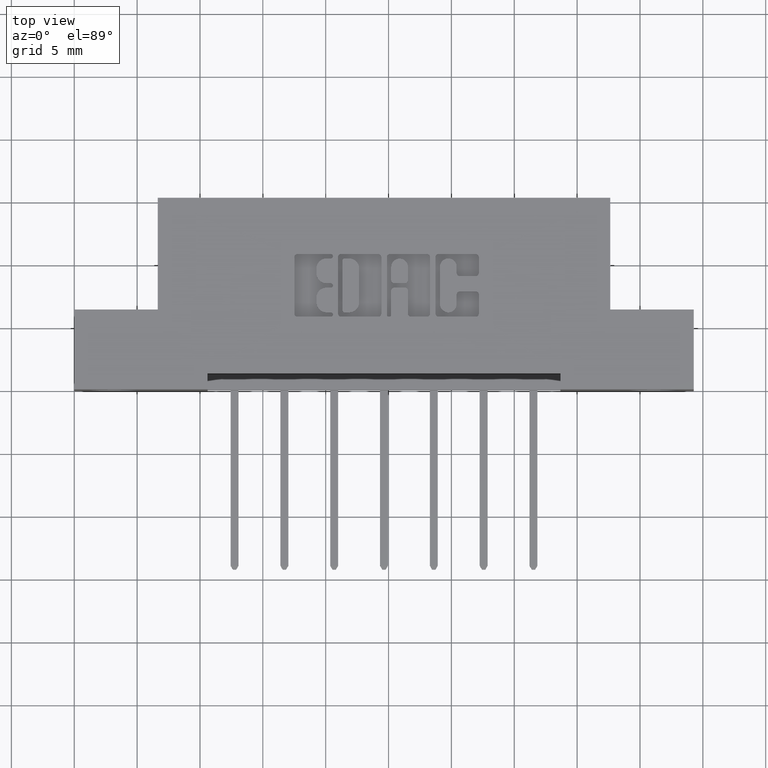
[diagram: clean part render]
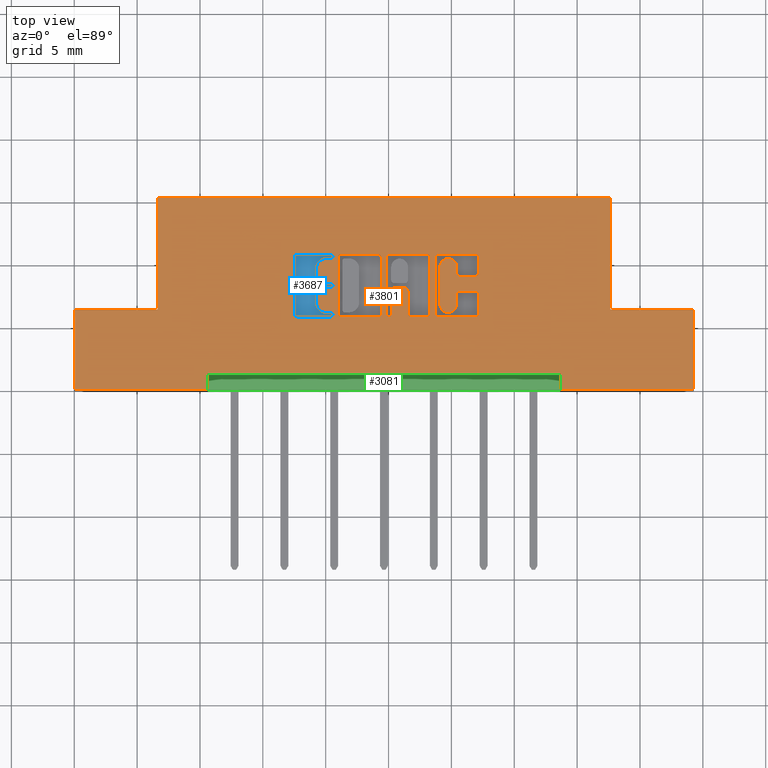
[diagram: same view with three faces highlighted in distinct colors, each labeled with its STEP entity id]
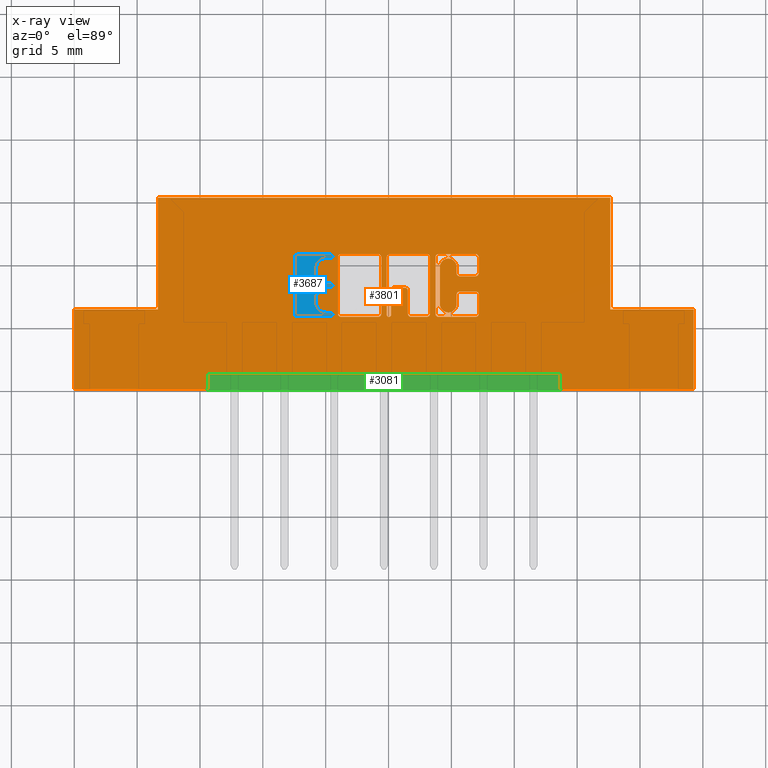
[diagram: x-ray of the same camera — body ghosted, the three highlighted faces saturated]
A machine part, top view with three faces highlighted in distinct colors.
The next image is the same camera in x-ray (body ghosted, the three faces saturated) — at least one of them is partly hidden behind the body in this view.
Their STEP definitions:

[orange] entity #3801 — the highlighted planar face has unit normal (0, 0, -1).
#26 = DIRECTION ( 'NONE',  ( 0.0000000000000000000, 1.000000000000000000, -0.0000000000000000000 ) ) ;
#53 = EDGE_CURVE ( 'NONE', #7961, #9605, #2455, .T. ) ;
#67 = LINE ( 'NONE', #6162, #3759 ) ;
#70 = EDGE_CURVE ( 'NONE', #9880, #6311, #340, .T. ) ;
#111 = CARTESIAN_POINT ( 'NONE',  ( 0.9854596805709871000, 0.2337142671046479000, 0.0000000000000000000 ) ) ;
#112 = CARTESIAN_POINT ( 'NONE',  ( 1.940000000000000200, 0.2500000000000000000, 0.0000000000000000000 ) ) ;
#128 = CARTESIAN_POINT ( 'NONE',  ( 1.256862961706153100, 0.2965345564089703600, 0.0000000000000000000 ) ) ;
#141 = DIRECTION ( 'NONE',  ( 1.000000000000000000, 0.0000000000000000000, 0.0000000000000000000 ) ) ;
#147 = ORIENTED_EDGE ( 'NONE', *, *, #8345, .F. ) ;
#168 = VERTEX_POINT ( 'NONE', #1696 ) ;
#214 = CARTESIAN_POINT ( 'NONE',  ( 0.7582269153529278500, 0.2719953808994903200, 0.0000000000000000000 ) ) ;
#225 = VERTEX_POINT ( 'NONE', #7189 ) ;
#233 = CARTESIAN_POINT ( 'NONE',  ( 0.6988421106199223000, 0.2366589681657899100, 0.0000000000000000000 ) ) ;
#236 = CARTESIAN_POINT ( 'NONE',  ( 0.8031336064153888900, 0.3181290308573567800, 0.0000000000000000000 ) ) ;
#238 = CIRCLE ( 'NONE', #5167, 0.03141014465218178200 ) ;
#246 = AXIS2_PLACEMENT_3D ( 'NONE', #3589, #8958, #4372 ) ;
#275 = CARTESIAN_POINT ( 'NONE',  ( 1.678500000000000100, 0.2500000000000000000, -1.895447083380316000E-016 ) ) ;
#286 = LINE ( 'NONE', #9485, #8552 ) ;
#291 = LINE ( 'NONE', #5645, #8311 ) ;
#299 = ORIENTED_EDGE ( 'NONE', *, *, #782, .T. ) ;
#321 = ORIENTED_EDGE ( 'NONE', *, *, #6445, .F. ) ;
#329 = DIRECTION ( 'NONE',  ( 0.0000000000000000000, 0.0000000000000000000, -1.000000000000000000 ) ) ;
#340 = CIRCLE ( 'NONE', #7452, 0.02625691779517380600 ) ;
#357 = EDGE_CURVE ( 'NONE', #608, #4814, #9789, .T. ) ;
#360 = VERTEX_POINT ( 'NONE', #3204 ) ;
#399 = LINE ( 'NONE', #438, #4344 ) ;
#415 = CIRCLE ( 'NONE', #1346, 0.009815670203822599700 ) ;
#432 = CARTESIAN_POINT ( 'NONE',  ( 0.6988421106199186300, 0.2268432979619849100, 0.0000000000000000000 ) ) ;
#435 = VERTEX_POINT ( 'NONE', #3932 ) ;
#438 = CARTESIAN_POINT ( 'NONE',  ( -1.634053534412010600E-015, 0.2268432979619798800, 0.0000000000000000000 ) ) ;
#497 = DIRECTION ( 'NONE',  ( -0.0000000000000000000, -1.000000000000000000, -0.0000000000000000000 ) ) ;
#502 = ORIENTED_EDGE ( 'NONE', *, *, #3018, .F. ) ;
#515 = DIRECTION ( 'NONE',  ( 1.000000000000000000, 0.0000000000000000000, 0.0000000000000000000 ) ) ;
#540 = DIRECTION ( 'NONE',  ( -0.0000000000000000000, 0.0000000000000000000, 1.000000000000000000 ) ) ;
#559 = ORIENTED_EDGE ( 'NONE', *, *, #5743, .F. ) ;
#591 = CARTESIAN_POINT ( 'NONE',  ( 1.035028815100188300, 0.3181290308573497300, 0.0000000000000000000 ) ) ;
#604 = CARTESIAN_POINT ( 'NONE',  ( 0.8100045756779736800, 0.3250000000000203300, 0.0000000000000000000 ) ) ;
#608 = VERTEX_POINT ( 'NONE', #236 ) ;
#610 = DIRECTION ( 'NONE',  ( -0.0000000000000000000, 0.0000000000000000000, 1.000000000000000000 ) ) ;
#614 = CIRCLE ( 'NONE', #1870, 0.009815670203806345400 ) ;
#624 = CARTESIAN_POINT ( 'NONE',  ( 0.9884043816321275200, 0.4231567020380065900, 0.0000000000000000000 ) ) ;
#627 = DIRECTION ( 'NONE',  ( -1.000000000000000000, 0.0000000000000000000, 0.0000000000000000000 ) ) ;
#629 = DIRECTION ( 'NONE',  ( 1.000000000000000000, 0.0000000000000000000, 0.0000000000000000000 ) ) ;
#631 = EDGE_CURVE ( 'NONE', #1536, #9920, #3539, .T. ) ;
#635 = DIRECTION ( 'NONE',  ( 1.000000000000000000, 0.0000000000000000000, 0.0000000000000000000 ) ) ;
#651 = VECTOR ( 'NONE', #1976, 39.37007874015748100 ) ;
#659 = VERTEX_POINT ( 'NONE', #4995 ) ;
#660 = CARTESIAN_POINT ( 'NONE',  ( 1.144964321382818500, 0.3831578459575295500, 0.0000000000000000000 ) ) ;
#747 = LINE ( 'NONE', #2593, #5185 ) ;
#748 = EDGE_CURVE ( 'NONE', #2202, #8889, #9193, .T. ) ;
#756 = CARTESIAN_POINT ( 'NONE',  ( 1.207293827176967100, 0.2965345564089695300, 0.0000000000000000000 ) ) ;
#782 = EDGE_CURVE ( 'NONE', #3351, #4321, #3894, .T. ) ;
#792 = CARTESIAN_POINT ( 'NONE',  ( 0.7896370600050841600, 0.2867188862052004700, 0.0000000000000000000 ) ) ;
#800 = ORIENTED_EDGE ( 'NONE', *, *, #7327, .F. ) ;
#838 = EDGE_CURVE ( 'NONE', #4851, #5885, #10010, .T. ) ;
#848 = VERTEX_POINT ( 'NONE', #8348 ) ;
#849 = LINE ( 'NONE', #9022, #4801 ) ;
#852 = ORIENTED_EDGE ( 'NONE', *, *, #1418, .T. ) ;
#874 = VECTOR ( 'NONE', #8720, 39.37007874015748100 ) ;
#890 = EDGE_LOOP ( 'NONE', ( #502, #5200, #3838, #3620, #7851, #299, #1597, #1738, #8281, #6987, #3594, #6872 ) ) ;
#892 = DIRECTION ( 'NONE',  ( 1.000000000000000000, 0.0000000000000000000, 0.0000000000000000000 ) ) ;
#904 = LINE ( 'NONE', #7586, #6898 ) ;
#914 = VECTOR ( 'NONE', #1602, 39.37007874015748100 ) ;
#915 = DIRECTION ( 'NONE',  ( 1.000000000000000000, 0.0000000000000000000, 0.0000000000000000000 ) ) ;
#972 = CARTESIAN_POINT ( 'NONE',  ( 0.0000000000000000000, 0.4231567020380509500, 0.0000000000000000000 ) ) ;
#1002 = CARTESIAN_POINT ( 'NONE',  ( 1.522500000000000200, 0.05000000000000000300, 0.0000000000000000000 ) ) ;
#1015 = CARTESIAN_POINT ( 'NONE',  ( 1.940000000000000200, 0.5999999999999999800, 0.0000000000000000000 ) ) ;
#1020 = DIRECTION ( 'NONE',  ( 1.000000000000000000, 0.0000000000000000000, 0.0000000000000000000 ) ) ;
#1062 = EDGE_CURVE ( 'NONE', #435, #4969, #1689, .T. ) ;
#1071 = CARTESIAN_POINT ( 'NONE',  ( -0.0000000000000000000, 0.3181290308573567800, 0.0000000000000000000 ) ) ;
#1110 = VERTEX_POINT ( 'NONE', #6683 ) ;
#1124 = VECTOR ( 'NONE', #8148, 39.37007874015748100 ) ;
#1138 = CARTESIAN_POINT ( 'NONE',  ( 0.8100045756779977700, 0.2337142671046479000, 0.0000000000000000000 ) ) ;
#1139 = FACE_BOUND ( 'NONE', #1833, .T. ) ;
#1145 = VECTOR ( 'NONE', #8739, 39.37007874015748100 ) ;
#1147 = CARTESIAN_POINT ( 'NONE',  ( 0.0000000000000000000, 0.0000000000000000000, 0.0000000000000000000 ) ) ;
#1163 = CARTESIAN_POINT ( 'NONE',  ( 0.9614112885716690200, 0.4133410318342100600, 0.0000000000000000000 ) ) ;
#1174 = VERTEX_POINT ( 'NONE', #5469 ) ;
#1183 = ORIENTED_EDGE ( 'NONE', *, *, #5947, .F. ) ;
#1192 = EDGE_CURVE ( 'NONE', #9880, #2360, #4639, .T. ) ;
#1194 = DIRECTION ( 'NONE',  ( -0.0000000000000000000, 0.0000000000000000000, 1.000000000000000000 ) ) ;
#1201 = CARTESIAN_POINT ( 'NONE',  ( 1.114044960240806900, 0.4133410318342009000, 0.0000000000000000000 ) ) ;
#1214 = CARTESIAN_POINT ( 'NONE',  ( 0.8031336065353514900, 0.4162857328953862300, 0.0000000000000000000 ) ) ;
#1291 = CARTESIAN_POINT ( 'NONE',  ( -0.0000000000000000000, 0.4094147637527356700, 0.0000000000000000000 ) ) ;
#1307 = CARTESIAN_POINT ( 'NONE',  ( 1.197478156973179200, 0.2965345564089686400, 0.0000000000000000000 ) ) ;
#1310 = ORIENTED_EDGE ( 'NONE', *, *, #1577, .T. ) ;
#1332 = VERTEX_POINT ( 'NONE', #6591 ) ;
#1337 = DIRECTION ( 'NONE',  ( -0.0000000000000000000, 0.0000000000000000000, 1.000000000000000000 ) ) ;
#1338 = CIRCLE ( 'NONE', #7204, 0.009815670203796920600 ) ;
#1346 = AXIS2_PLACEMENT_3D ( 'NONE', #7135, #2502, #7898 ) ;
#1373 = DIRECTION ( 'NONE',  ( 0.0000000000000000000, -1.000000000000000000, 0.0000000000000000000 ) ) ;
#1382 = VERTEX_POINT ( 'NONE', #8559 ) ;
#1388 = DIRECTION ( 'NONE',  ( -0.0000000000000000000, 0.0000000000000000000, 1.000000000000000000 ) ) ;
#1390 = FACE_BOUND ( 'NONE', #2987, .T. ) ;
#1405 = VERTEX_POINT ( 'NONE', #8907 ) ;
#1408 = CIRCLE ( 'NONE', #8192, 0.009815670203841039800 ) ;
#1418 = EDGE_CURVE ( 'NONE', #3120, #9920, #67, .T. ) ;
#1442 = CARTESIAN_POINT ( 'NONE',  ( 0.6988421106199380600, 0.4231567020380326800, 0.0000000000000000000 ) ) ;
#1535 = LINE ( 'NONE', #3457, #5474 ) ;
#1536 = VERTEX_POINT ( 'NONE', #624 ) ;
#1555 = DIRECTION ( 'NONE',  ( 1.000000000000000000, 0.0000000000000000000, 0.0000000000000000000 ) ) ;
#1557 = CARTESIAN_POINT ( 'NONE',  ( 1.104229290037011600, 0.4133410318342103400, 0.0000000000000000000 ) ) ;
#1569 = CARTESIAN_POINT ( 'NONE',  ( 1.256862961706167100, 0.3539562271012334200, 0.0000000000000000000 ) ) ;
#1571 = CARTESIAN_POINT ( 'NONE',  ( 0.7896370600051254600, 0.3780046191005197500, 0.0000000000000000000 ) ) ;
#1577 = EDGE_CURVE ( 'NONE', #5709, #7743, #4875, .T. ) ;
#1584 = VERTEX_POINT ( 'NONE', #591 ) ;
#1586 = DIRECTION ( 'NONE',  ( 1.000000000000000000, 0.0000000000000000000, 0.0000000000000000000 ) ) ;
#1597 = ORIENTED_EDGE ( 'NONE', *, *, #5377, .T. ) ;
#1602 = DIRECTION ( 'NONE',  ( 1.000000000000000000, 0.0000000000000000000, 0.0000000000000000000 ) ) ;
#1609 = AXIS2_PLACEMENT_3D ( 'NONE', #8042, #3429, #8825 ) ;
#1614 = CARTESIAN_POINT ( 'NONE',  ( 1.266678631909972300, 0.3637718973050386200, 0.0000000000000000000 ) ) ;
#1616 = CIRCLE ( 'NONE', #7361, 0.009815670203806754800 ) ;
#1639 = LINE ( 'NONE', #6112, #5574 ) ;
#1647 = ORIENTED_EDGE ( 'NONE', *, *, #631, .F. ) ;
#1689 = LINE ( 'NONE', #4308, #9654 ) ;
#1696 = CARTESIAN_POINT ( 'NONE',  ( 0.9923306497136470400, 0.2337142671046479000, 0.0000000000000000000 ) ) ;
#1716 = VERTEX_POINT ( 'NONE', #7749 ) ;
#1737 = VERTEX_POINT ( 'NONE', #3866 ) ;
#1738 = ORIENTED_EDGE ( 'NONE', *, *, #5485, .F. ) ;
#1782 = DIRECTION ( 'NONE',  ( -1.000000000000000000, 0.0000000000000000000, 0.0000000000000000000 ) ) ;
#1790 = LINE ( 'NONE', #4877, #9755 ) ;
#1792 = DIRECTION ( 'NONE',  ( -0.0000000000000000000, 0.0000000000000000000, 1.000000000000000000 ) ) ;
#1815 = VECTOR ( 'NONE', #3345, 39.37007874015748100 ) ;
#1818 = CARTESIAN_POINT ( 'NONE',  ( 1.266678631909940300, 0.2366589681657829400, 0.0000000000000000000 ) ) ;
#1829 = ORIENTED_EDGE ( 'NONE', *, *, #9506, .T. ) ;
#1833 = EDGE_LOOP ( 'NONE', ( #7716, #4346, #8069, #7614, #2161, #800, #5483, #4130 ) ) ;
#1852 = AXIS2_PLACEMENT_3D ( 'NONE', #2345, #7761, #3137 ) ;
#1860 = CARTESIAN_POINT ( 'NONE',  ( 1.197478156973179200, 0.2668421540424529800, 0.0000000000000000000 ) ) ;
#1863 = EDGE_CURVE ( 'NONE', #3132, #5298, #8218, .T. ) ;
#1868 = DIRECTION ( 'NONE',  ( -0.0000000000000000000, 0.0000000000000000000, 1.000000000000000000 ) ) ;
#1870 = AXIS2_PLACEMENT_3D ( 'NONE', #5268, #540, #6026 ) ;
#1892 = ORIENTED_EDGE ( 'NONE', *, *, #2265, .F. ) ;
#1899 = ORIENTED_EDGE ( 'NONE', *, *, #9264, .F. ) ;
#1935 = DIRECTION ( 'NONE',  ( -0.0000000000000000000, 0.0000000000000000000, 1.000000000000000000 ) ) ;
#1970 = VERTEX_POINT ( 'NONE', #9714 ) ;
#1976 = DIRECTION ( 'NONE',  ( -1.000000000000000000, 0.0000000000000000000, 0.0000000000000000000 ) ) ;
#1998 = ORIENTED_EDGE ( 'NONE', *, *, #7542, .F. ) ;
#2000 = EDGE_CURVE ( 'NONE', #1536, #4442, #9303, .T. ) ;
#2023 = DIRECTION ( 'NONE',  ( 1.000000000000000000, 0.0000000000000000000, 0.0000000000000000000 ) ) ;
#2070 = DIRECTION ( 'NONE',  ( -0.0000000000000000000, 0.0000000000000000000, 1.000000000000000000 ) ) ;
#2105 = ORIENTED_EDGE ( 'NONE', *, *, #8858, .F. ) ;
#2116 = VECTOR ( 'NONE', #7254, 39.37007874015748100 ) ;
#2128 = EDGE_CURVE ( 'NONE', #360, #7743, #4488, .T. ) ;
#2129 = LINE ( 'NONE', #4151, #6045 ) ;
#2148 = DIRECTION ( 'NONE',  ( -0.0000000000000000000, 0.0000000000000000000, 1.000000000000000000 ) ) ;
#2161 = ORIENTED_EDGE ( 'NONE', *, *, #5116, .F. ) ;
#2167 = DIRECTION ( 'NONE',  ( -0.0000000000000000000, 0.0000000000000000000, 1.000000000000000000 ) ) ;
#2201 = AXIS2_PLACEMENT_3D ( 'NONE', #6947, #1337, #8371 ) ;
#2202 = VERTEX_POINT ( 'NONE', #4678 ) ;
#2214 = DIRECTION ( 'NONE',  ( -0.0000000000000000000, 0.0000000000000000000, 1.000000000000000000 ) ) ;
#2232 = VERTEX_POINT ( 'NONE', #1569 ) ;
#2240 = EDGE_CURVE ( 'NONE', #9899, #4851, #3753, .T. ) ;
#2247 = VECTOR ( 'NONE', #6756, 39.37007874015748100 ) ;
#2254 = VERTEX_POINT ( 'NONE', #3118 ) ;
#2264 = EDGE_LOOP ( 'NONE', ( #8714, #5373, #7878, #8835, #1310, #5969, #9201, #6582, #2933, #5756, #2332, #1899, #852, #1647 ) ) ;
#2265 = EDGE_CURVE ( 'NONE', #9334, #1405, #5108, .T. ) ;
#2283 = VECTOR ( 'NONE', #6362, 39.37007874015748100 ) ;
#2323 = DIRECTION ( 'NONE',  ( 0.0000000000000000000, 1.000000000000000000, -0.0000000000000000000 ) ) ;
#2332 = ORIENTED_EDGE ( 'NONE', *, *, #7900, .T. ) ;
#2345 = CARTESIAN_POINT ( 'NONE',  ( 0.9515956183678622200, 0.2366589681657899100, 0.0000000000000000000 ) ) ;
#2349 = DIRECTION ( 'NONE',  ( 1.000000000000000000, 0.0000000000000000000, 0.0000000000000000000 ) ) ;
#2352 = CARTESIAN_POINT ( 'NONE',  ( 0.9515956183678961900, 0.4231567020380509500, 0.0000000000000000000 ) ) ;
#2360 = VERTEX_POINT ( 'NONE', #6376 ) ;
#2364 = CIRCLE ( 'NONE', #4219, 0.03141014465221578900 ) ;
#2365 = DIRECTION ( 'NONE',  ( 0.0000000000000000000, 1.000000000000000000, -0.0000000000000000000 ) ) ;
#2368 = DIRECTION ( 'NONE',  ( 1.000000000000000000, 0.0000000000000000000, 0.0000000000000000000 ) ) ;
#2387 = CIRCLE ( 'NONE', #3470, 0.009815670203803203800 ) ;
#2397 = VECTOR ( 'NONE', #5810, 39.37007874015748100 ) ;
#2409 = EDGE_CURVE ( 'NONE', #4805, #2254, #1790, .T. ) ;
#2437 = CARTESIAN_POINT ( 'NONE',  ( 0.0000000000000000000, 0.2268432979619845700, 0.0000000000000000000 ) ) ;
#2455 = LINE ( 'NONE', #3889, #4272 ) ;
#2502 = DIRECTION ( 'NONE',  ( -0.0000000000000000000, 0.0000000000000000000, 1.000000000000000000 ) ) ;
#2510 = CARTESIAN_POINT ( 'NONE',  ( 1.104229290037010500, 0.2268432979619845700, 0.0000000000000000000 ) ) ;
#2520 = CARTESIAN_POINT ( 'NONE',  ( 1.940000000000000200, 0.0000000000000000000, 0.0000000000000000000 ) ) ;
#2548 = VECTOR ( 'NONE', #6180, 39.37007874015748100 ) ;
#2553 = EDGE_CURVE ( 'NONE', #1382, #608, #9035, .T. ) ;
#2575 = ORIENTED_EDGE ( 'NONE', *, *, #7758, .F. ) ;
#2579 = DIRECTION ( 'NONE',  ( -0.0000000000000000000, 0.0000000000000000000, 1.000000000000000000 ) ) ;
#2593 = CARTESIAN_POINT ( 'NONE',  ( 0.4174999999999999800, 0.05000000000000000300, 0.0000000000000000000 ) ) ;
#2600 = VERTEX_POINT ( 'NONE', #5845 ) ;
#2625 = CARTESIAN_POINT ( 'NONE',  ( 1.256862961706156600, 0.3063502266127575100, 0.0000000000000000000 ) ) ;
#2696 = VERTEX_POINT ( 'NONE', #3627 ) ;
#2698 = ORIENTED_EDGE ( 'NONE', *, *, #7741, .T. ) ;
#2725 = CARTESIAN_POINT ( 'NONE',  ( 1.207293827176977500, 0.3637718973050451700, 0.0000000000000000000 ) ) ;
#2738 = LINE ( 'NONE', #972, #8894 ) ;
#2786 = AXIS2_PLACEMENT_3D ( 'NONE', #6878, #2214, #7636 ) ;
#2850 = VERTEX_POINT ( 'NONE', #9210 ) ;
#2888 = VECTOR ( 'NONE', #6619, 39.37007874015748100 ) ;
#2895 = EDGE_CURVE ( 'NONE', #5298, #4592, #9411, .T. ) ;
#2922 = EDGE_CURVE ( 'NONE', #1382, #9566, #7370, .T. ) ;
#2925 = VERTEX_POINT ( 'NONE', #4734 ) ;
#2933 = ORIENTED_EDGE ( 'NONE', *, *, #7457, .T. ) ;
#2979 = LINE ( 'NONE', #3542, #1124 ) ;
#2987 = EDGE_LOOP ( 'NONE', ( #2698, #7072, #6948, #1183, #6076, #3675, #8430, #5541, #559, #1829, #321, #3728, #7453, #6790, #5275, #2575, #7080, #4922, #3570, #6125, #1998 ) ) ;
#2997 = AXIS2_PLACEMENT_3D ( 'NONE', #9912, #5353, #629 ) ;
#3002 = EDGE_CURVE ( 'NONE', #9761, #9719, #415, .T. ) ;
#3009 = LINE ( 'NONE', #7638, #6903 ) ;
#3018 = EDGE_CURVE ( 'NONE', #5910, #1970, #6424, .T. ) ;
#3060 = DIRECTION ( 'NONE',  ( 0.0000000000000000000, -1.000000000000000000, 0.0000000000000000000 ) ) ;
#3114 = CARTESIAN_POINT ( 'NONE',  ( 0.7582269153529097600, 0.3632811137948582800, 0.0000000000000000000 ) ) ;
#3118 = CARTESIAN_POINT ( 'NONE',  ( 1.678500000000000100, 0.5999999999999999800, -1.895447083380316000E-016 ) ) ;
#3120 = VERTEX_POINT ( 'NONE', #8763 ) ;
#3130 = CARTESIAN_POINT ( 'NONE',  ( 1.002146319917450300, 0.3181290308573485600, 0.0000000000000000000 ) ) ;
#3132 = VERTEX_POINT ( 'NONE', #2625 ) ;
#3137 = DIRECTION ( 'NONE',  ( 1.000000000000000000, 0.0000000000000000000, 0.0000000000000000000 ) ) ;
#3145 = EDGE_CURVE ( 'NONE', #4155, #7696, #9283, .T. ) ;
#3204 = CARTESIAN_POINT ( 'NONE',  ( 1.044844485303984700, 0.2366589681657877700, 0.0000000000000000000 ) ) ;
#3259 = AXIS2_PLACEMENT_3D ( 'NONE', #8730, #610, #8103 ) ;
#3290 = VERTEX_POINT ( 'NONE', #432 ) ;
#3331 = VECTOR ( 'NONE', #9197, 39.37007874015748100 ) ;
#3345 = DIRECTION ( 'NONE',  ( -0.0000000000000000000, -1.000000000000000000, -0.0000000000000000000 ) ) ;
#3351 = VERTEX_POINT ( 'NONE', #4463 ) ;
#3397 = VECTOR ( 'NONE', #4386, 39.37007874015748100 ) ;
#3415 = EDGE_CURVE ( 'NONE', #2850, #2232, #904, .T. ) ;
#3427 = VERTEX_POINT ( 'NONE', #6097 ) ;
#3429 = DIRECTION ( 'NONE',  ( -0.0000000000000000000, 0.0000000000000000000, 1.000000000000000000 ) ) ;
#3453 = CARTESIAN_POINT ( 'NONE',  ( 0.7582269153529097600, 0.3780046191005197500, 0.0000000000000000000 ) ) ;
#3457 = CARTESIAN_POINT ( 'NONE',  ( 1.131222383097458600, 0.0000000000000000000, 0.0000000000000000000 ) ) ;
#3470 = AXIS2_PLACEMENT_3D ( 'NONE', #6458, #1792, #7216 ) ;
#3488 = CARTESIAN_POINT ( 'NONE',  ( 1.104229290037014100, 0.4231567020380065900, 0.0000000000000000000 ) ) ;
#3516 = CARTESIAN_POINT ( 'NONE',  ( 0.7582269153529278500, 0.2867188862052004700, 0.0000000000000000000 ) ) ;
#3520 = DIRECTION ( 'NONE',  ( 1.000000000000000000, 0.0000000000000000000, 0.0000000000000000000 ) ) ;
#3521 = EDGE_CURVE ( 'NONE', #1110, #4472, #8193, .T. ) ;
#3539 = CIRCLE ( 'NONE', #8094, 0.009815670203796511200 ) ;
#3542 = CARTESIAN_POINT ( 'NONE',  ( -1.123269580619631200E-014, 0.3181290308573132000, 0.0000000000000000000 ) ) ;
#3554 = VERTEX_POINT ( 'NONE', #3130 ) ;
#3570 = ORIENTED_EDGE ( 'NONE', *, *, #5291, .F. ) ;
#3589 = CARTESIAN_POINT ( 'NONE',  ( 0.8357707099630102800, 0.4133410318342100600, 0.0000000000000000000 ) ) ;
#3594 = ORIENTED_EDGE ( 'NONE', *, *, #5249, .T. ) ;
#3620 = ORIENTED_EDGE ( 'NONE', *, *, #3736, .F. ) ;
#3627 = CARTESIAN_POINT ( 'NONE',  ( 0.6890264404161154900, 0.2366589681657899100, 0.0000000000000000000 ) ) ;
#3629 = CARTESIAN_POINT ( 'NONE',  ( 0.8259550397591694000, 0.4133410318342100600, 0.0000000000000000000 ) ) ;
#3675 = ORIENTED_EDGE ( 'NONE', *, *, #357, .F. ) ;
#3702 = EDGE_CURVE ( 'NONE', #6397, #8309, #286, .T. ) ;
#3707 = EDGE_CURVE ( 'NONE', #3554, #1737, #2387, .T. ) ;
#3728 = ORIENTED_EDGE ( 'NONE', *, *, #6225, .F. ) ;
#3736 = EDGE_CURVE ( 'NONE', #1332, #4805, #2129, .T. ) ;
#3737 = VERTEX_POINT ( 'NONE', #4944 ) ;
#3744 = CARTESIAN_POINT ( 'NONE',  ( 0.2615000000000001200, 0.5999999999999999800, 0.0000000000000000000 ) ) ;
#3746 = EDGE_CURVE ( 'NONE', #1970, #7893, #8064, .T. ) ;
#3747 = CARTESIAN_POINT ( 'NONE',  ( 0.6890264404161154900, 0.4133410318342100600, 0.0000000000000000000 ) ) ;
#3753 = LINE ( 'NONE', #5488, #9163 ) ;
#3759 = VECTOR ( 'NONE', #26, 39.37007874015748100 ) ;
#3798 = DIRECTION ( 'NONE',  ( -0.0000000000000000000, -1.000000000000000000, -0.0000000000000000000 ) ) ;
#3801 = ADVANCED_FACE ( 'NONE', ( #3980, #1390, #5331, #1139, #9142 ), #9613, .F. ) ;
#3838 = ORIENTED_EDGE ( 'NONE', *, *, #2409, .F. ) ;
#3866 = CARTESIAN_POINT ( 'NONE',  ( 0.9923306497136470400, 0.3083133606535455300, 0.0000000000000000000 ) ) ;
#3879 = CARTESIAN_POINT ( 'NONE',  ( 0.8031336065353356100, 0.2337142671046479000, 0.0000000000000000000 ) ) ;
#3889 = CARTESIAN_POINT ( 'NONE',  ( 1.266678631909940300, 0.0000000000000000000, 0.0000000000000000000 ) ) ;
#3894 = LINE ( 'NONE', #5894, #1815 ) ;
#3905 = ORIENTED_EDGE ( 'NONE', *, *, #8253, .F. ) ;
#3916 = CARTESIAN_POINT ( 'NONE',  ( 1.197478156973165800, 0.3831578454992598500, 0.0000000000000000000 ) ) ;
#3923 = CIRCLE ( 'NONE', #1609, 0.009815670203840902800 ) ;
#3931 = CIRCLE ( 'NONE', #6190, 0.006870969142663594700 ) ;
#3932 = CARTESIAN_POINT ( 'NONE',  ( 0.8357707099629760900, 0.2268432979619831300, 0.0000000000000000000 ) ) ;
#3933 = EDGE_CURVE ( 'NONE', #4220, #9557, #4096, .T. ) ;
#3973 = CIRCLE ( 'NONE', #6101, 0.006870969142662229500 ) ;
#3975 = ORIENTED_EDGE ( 'NONE', *, *, #5196, .F. ) ;
#3977 = VECTOR ( 'NONE', #1373, 39.37007874015748100 ) ;
#3980 = FACE_BOUND ( 'NONE', #5447, .T. ) ;
#4077 = EDGE_CURVE ( 'NONE', #5709, #659, #8780, .T. ) ;
#4096 = LINE ( 'NONE', #7440, #9967 ) ;
#4106 = CARTESIAN_POINT ( 'NONE',  ( 0.0000000000000000000, 0.0000000000000000000, 0.0000000000000000000 ) ) ;
#4130 = ORIENTED_EDGE ( 'NONE', *, *, #3702, .F. ) ;
#4151 = CARTESIAN_POINT ( 'NONE',  ( 0.2615000000000001200, 0.2500000000000000000, 0.0000000000000000000 ) ) ;
#4155 = VERTEX_POINT ( 'NONE', #3114 ) ;
#4165 = AXIS2_PLACEMENT_3D ( 'NONE', #5406, #2167, #9781 ) ;
#4188 = AXIS2_PLACEMENT_3D ( 'NONE', #3879, #9262, #4688 ) ;
#4207 = LINE ( 'NONE', #4946, #2116 ) ;
#4219 = AXIS2_PLACEMENT_3D ( 'NONE', #1571, #7024, #2368 ) ;
#4220 = VERTEX_POINT ( 'NONE', #7808 ) ;
#4248 = CARTESIAN_POINT ( 'NONE',  ( 0.0000000000000000000, 0.5999999999999999800, 0.0000000000000000000 ) ) ;
#4272 = VECTOR ( 'NONE', #5691, 39.37007874015748100 ) ;
#4298 = CARTESIAN_POINT ( 'NONE',  ( 0.0000000000000000000, 0.3318709691426838200, 0.0000000000000000000 ) ) ;
#4308 = CARTESIAN_POINT ( 'NONE',  ( -0.0000000000000000000, 0.2268432979619831300, 0.0000000000000000000 ) ) ;
#4321 = VERTEX_POINT ( 'NONE', #4106 ) ;
#4327 = EDGE_CURVE ( 'NONE', #5885, #1174, #2738, .T. ) ;
#4344 = VECTOR ( 'NONE', #5930, 39.37007874015748100 ) ;
#4346 = ORIENTED_EDGE ( 'NONE', *, *, #3933, .F. ) ;
#4372 = DIRECTION ( 'NONE',  ( 1.000000000000000000, 0.0000000000000000000, 0.0000000000000000000 ) ) ;
#4374 = VERTEX_POINT ( 'NONE', #1002 ) ;
#4386 = DIRECTION ( 'NONE',  ( 1.000000000000000000, 0.0000000000000000000, 0.0000000000000000000 ) ) ;
#4442 = VERTEX_POINT ( 'NONE', #3488 ) ;
#4463 = CARTESIAN_POINT ( 'NONE',  ( 0.0000000000000000000, 0.2500000000000000000, 0.0000000000000000000 ) ) ;
#4472 = VERTEX_POINT ( 'NONE', #1138 ) ;
#4488 = CIRCLE ( 'NONE', #2997, 0.009815670203803203800 ) ;
#4530 = ORIENTED_EDGE ( 'NONE', *, *, #53, .F. ) ;
#4531 = EDGE_CURVE ( 'NONE', #8309, #8155, #4945, .T. ) ;
#4592 = VERTEX_POINT ( 'NONE', #1307 ) ;
#4596 = CIRCLE ( 'NONE', #1852, 0.009815670203806754800 ) ;
#4599 = CARTESIAN_POINT ( 'NONE',  ( 1.104229290037010500, 0.2366589681657808000, 0.0000000000000000000 ) ) ;
#4613 = CARTESIAN_POINT ( 'NONE',  ( 1.044844485303984700, 0.3083133606535433700, 0.0000000000000000000 ) ) ;
#4639 = LINE ( 'NONE', #9115, #6435 ) ;
#4670 = EDGE_CURVE ( 'NONE', #5970, #4442, #7564, .T. ) ;
#4678 = CARTESIAN_POINT ( 'NONE',  ( 0.8031336065353514900, 0.4094147637527356700, 0.0000000000000000000 ) ) ;
#4688 = DIRECTION ( 'NONE',  ( 1.000000000000000000, 0.0000000000000000000, 0.0000000000000000000 ) ) ;
#4716 = CARTESIAN_POINT ( 'NONE',  ( 0.9515956183678622200, 0.2268432979619831300, 0.0000000000000000000 ) ) ;
#4734 = CARTESIAN_POINT ( 'NONE',  ( 0.8031336065353514900, 0.4231567020380326800, 0.0000000000000000000 ) ) ;
#4792 = CARTESIAN_POINT ( 'NONE',  ( 0.9785887114283310400, 0.4133410318342100600, 0.0000000000000000000 ) ) ;
#4801 = VECTOR ( 'NONE', #497, 39.37007874015748100 ) ;
#4805 = VERTEX_POINT ( 'NONE', #3744 ) ;
#4814 = VERTEX_POINT ( 'NONE', #604 ) ;
#4831 = EDGE_CURVE ( 'NONE', #2232, #9899, #6625, .T. ) ;
#4841 = ORIENTED_EDGE ( 'NONE', *, *, #1192, .F. ) ;
#4851 = VERTEX_POINT ( 'NONE', #8419 ) ;
#4860 = VERTEX_POINT ( 'NONE', #4613 ) ;
#4862 = DIRECTION ( 'NONE',  ( -0.0000000000000000000, 0.0000000000000000000, 1.000000000000000000 ) ) ;
#4875 = LINE ( 'NONE', #2437, #2548 ) ;
#4877 = CARTESIAN_POINT ( 'NONE',  ( 0.0000000000000000000, 0.5999999999999999800, 0.0000000000000000000 ) ) ;
#4914 = DIRECTION ( 'NONE',  ( -1.000000000000000000, 0.0000000000000000000, 0.0000000000000000000 ) ) ;
#4922 = ORIENTED_EDGE ( 'NONE', *, *, #8985, .F. ) ;
#4944 = CARTESIAN_POINT ( 'NONE',  ( 0.8031336064154144200, 0.2405852362473101500, 0.0000000000000000000 ) ) ;
#4945 = CIRCLE ( 'NONE', #246, 0.009815670203840902800 ) ;
#4946 = CARTESIAN_POINT ( 'NONE',  ( 0.8259550397591694000, 0.0000000000000000000, 0.0000000000000000000 ) ) ;
#4969 = VERTEX_POINT ( 'NONE', #4716 ) ;
#4982 = LINE ( 'NONE', #1147, #2888 ) ;
#4995 = CARTESIAN_POINT ( 'NONE',  ( 1.114044960240806900, 0.2366589681657808000, 0.0000000000000000000 ) ) ;
#5058 = EDGE_CURVE ( 'NONE', #9605, #3132, #6255, .T. ) ;
#5063 = LINE ( 'NONE', #7943, #874 ) ;
#5068 = LINE ( 'NONE', #6979, #8886 ) ;
#5090 = LINE ( 'NONE', #4298, #651 ) ;
#5108 = LINE ( 'NONE', #7811, #914 ) ;
#5116 = EDGE_CURVE ( 'NONE', #2600, #435, #1616, .T. ) ;
#5148 = CARTESIAN_POINT ( 'NONE',  ( 1.207293827176967100, 0.3063502266127575100, 0.0000000000000000000 ) ) ;
#5167 = AXIS2_PLACEMENT_3D ( 'NONE', #6604, #1935, #7357 ) ;
#5185 = VECTOR ( 'NONE', #7227, 39.37007874015748100 ) ;
#5196 = EDGE_CURVE ( 'NONE', #6168, #225, #1535, .T. ) ;
#5200 = ORIENTED_EDGE ( 'NONE', *, *, #9444, .T. ) ;
#5226 = DIRECTION ( 'NONE',  ( 1.000000000000000000, 0.0000000000000000000, 0.0000000000000000000 ) ) ;
#5247 = DIRECTION ( 'NONE',  ( 0.0000000000000000000, -1.000000000000000000, 0.0000000000000000000 ) ) ;
#5249 = EDGE_CURVE ( 'NONE', #1716, #7893, #4982, .T. ) ;
#5268 = CARTESIAN_POINT ( 'NONE',  ( 1.256862961706134200, 0.2366589681657899100, 0.0000000000000000000 ) ) ;
#5275 = ORIENTED_EDGE ( 'NONE', *, *, #9941, .F. ) ;
#5291 = EDGE_CURVE ( 'NONE', #8889, #2925, #6542, .T. ) ;
#5298 = VERTEX_POINT ( 'NONE', #5148 ) ;
#5324 = AXIS2_PLACEMENT_3D ( 'NONE', #128, #5628, #915 ) ;
#5331 = FACE_OUTER_BOUND ( 'NONE', #890, .T. ) ;
#5345 = CARTESIAN_POINT ( 'NONE',  ( 0.4174999999999998700, 0.0000000000000000000, 0.0000000000000000000 ) ) ;
#5353 = DIRECTION ( 'NONE',  ( -0.0000000000000000000, 0.0000000000000000000, 1.000000000000000000 ) ) ;
#5361 = DIRECTION ( 'NONE',  ( -0.0000000000000000000, 0.0000000000000000000, 1.000000000000000000 ) ) ;
#5365 = ORIENTED_EDGE ( 'NONE', *, *, #3415, .F. ) ;
#5373 = ORIENTED_EDGE ( 'NONE', *, *, #4670, .F. ) ;
#5377 = EDGE_CURVE ( 'NONE', #4321, #5479, #7853, .T. ) ;
#5380 = DIRECTION ( 'NONE',  ( 1.000000000000000000, 0.0000000000000000000, 0.0000000000000000000 ) ) ;
#5397 = EDGE_CURVE ( 'NONE', #9557, #6397, #1408, .T. ) ;
#5406 = CARTESIAN_POINT ( 'NONE',  ( 0.8031336065353100700, 0.3250000000000203300, 0.0000000000000000000 ) ) ;
#5447 = EDGE_LOOP ( 'NONE', ( #6403, #5365, #8590, #4841, #7927, #147, #6611, #6715, #9491, #8262, #6503, #4530, #2105, #1892, #3905, #3975, #6816, #8967, #8624, #8330 ) ) ;
#5469 = CARTESIAN_POINT ( 'NONE',  ( 1.141038053301299600, 0.4231567020380509500, 0.0000000000000000000 ) ) ;
#5474 = VECTOR ( 'NONE', #8074, 39.37007874015748100 ) ;
#5479 = VERTEX_POINT ( 'NONE', #5345 ) ;
#5483 = ORIENTED_EDGE ( 'NONE', *, *, #4531, .F. ) ;
#5485 = EDGE_CURVE ( 'NONE', #8463, #5479, #3009, .T. ) ;
#5488 = CARTESIAN_POINT ( 'NONE',  ( 1.266678631909972300, 0.0000000000000000000, 0.0000000000000000000 ) ) ;
#5524 = CARTESIAN_POINT ( 'NONE',  ( 0.6890264404161154900, 0.0000000000000000000, 0.0000000000000000000 ) ) ;
#5541 = ORIENTED_EDGE ( 'NONE', *, *, #2922, .T. ) ;
#5574 = VECTOR ( 'NONE', #9139, 39.37007874015748100 ) ;
#5609 = DIRECTION ( 'NONE',  ( -0.0000000000000000000, 0.0000000000000000000, 1.000000000000000000 ) ) ;
#5628 = DIRECTION ( 'NONE',  ( -0.0000000000000000000, 0.0000000000000000000, 1.000000000000000000 ) ) ;
#5645 = CARTESIAN_POINT ( 'NONE',  ( 0.7582269153529278500, 0.0000000000000000000, 0.0000000000000000000 ) ) ;
#5650 = AXIS2_PLACEMENT_3D ( 'NONE', #1214, #6686, #2023 ) ;
#5691 = DIRECTION ( 'NONE',  ( 0.0000000000000000000, 1.000000000000000000, -0.0000000000000000000 ) ) ;
#5709 = VERTEX_POINT ( 'NONE', #2510 ) ;
#5724 = DIRECTION ( 'NONE',  ( -0.0000000000000000000, 0.0000000000000000000, 1.000000000000000000 ) ) ;
#5743 = EDGE_CURVE ( 'NONE', #8578, #9566, #291, .T. ) ;
#5756 = ORIENTED_EDGE ( 'NONE', *, *, #3707, .T. ) ;
#5800 = EDGE_CURVE ( 'NONE', #3351, #1332, #6292, .T. ) ;
#5810 = DIRECTION ( 'NONE',  ( 1.000000000000000000, 0.0000000000000000000, 0.0000000000000000000 ) ) ;
#5821 = DIRECTION ( 'NONE',  ( -1.000000000000000000, 0.0000000000000000000, -0.0000000000000000000 ) ) ;
#5845 = CARTESIAN_POINT ( 'NONE',  ( 0.8259550397591694000, 0.2366589681657899100, 0.0000000000000000000 ) ) ;
#5885 = VERTEX_POINT ( 'NONE', #9599 ) ;
#5888 = AXIS2_PLACEMENT_3D ( 'NONE', #4599, #9940, #5380 ) ;
#5891 = CARTESIAN_POINT ( 'NONE',  ( 0.8031336065353100700, 0.3250000000000203300, 0.0000000000000000000 ) ) ;
#5894 = CARTESIAN_POINT ( 'NONE',  ( 0.0000000000000000000, 0.5999999999999999800, 0.0000000000000000000 ) ) ;
#5910 = VERTEX_POINT ( 'NONE', #8867 ) ;
#5923 = CARTESIAN_POINT ( 'NONE',  ( 1.266678631909940300, 0.2965345564089703600, 0.0000000000000000000 ) ) ;
#5930 = DIRECTION ( 'NONE',  ( 1.000000000000000000, 7.203446383881645100E-015, 0.0000000000000000000 ) ) ;
#5947 = EDGE_CURVE ( 'NONE', #8351, #7696, #5090, .T. ) ;
#5969 = ORIENTED_EDGE ( 'NONE', *, *, #2128, .F. ) ;
#5970 = VERTEX_POINT ( 'NONE', #1201 ) ;
#5986 = EDGE_CURVE ( 'NONE', #3290, #1110, #399, .T. ) ;
#6015 = CIRCLE ( 'NONE', #7774, 0.009815670203811672700 ) ;
#6021 = AXIS2_PLACEMENT_3D ( 'NONE', #1557, #7007, #2349 ) ;
#6022 = VECTOR ( 'NONE', #9318, 39.37007874015748100 ) ;
#6026 = DIRECTION ( 'NONE',  ( 1.000000000000000000, 0.0000000000000000000, 0.0000000000000000000 ) ) ;
#6045 = VECTOR ( 'NONE', #9517, 39.37007874015748100 ) ;
#6074 = AXIS2_PLACEMENT_3D ( 'NONE', #6534, #1868, #7292 ) ;
#6076 = ORIENTED_EDGE ( 'NONE', *, *, #9571, .F. ) ;
#6077 = CARTESIAN_POINT ( 'NONE',  ( 0.8031336065353356100, 0.2337142671046479000, 0.0000000000000000000 ) ) ;
#6097 = CARTESIAN_POINT ( 'NONE',  ( 0.7896370600051096900, 0.2405852362473085400, 0.0000000000000000000 ) ) ;
#6101 = AXIS2_PLACEMENT_3D ( 'NONE', #6077, #1388, #6845 ) ;
#6112 = CARTESIAN_POINT ( 'NONE',  ( 1.044844485303984700, 0.0000000000000000000, 0.0000000000000000000 ) ) ;
#6123 = CIRCLE ( 'NONE', #8927, 0.02625691779518036400 ) ;
#6125 = ORIENTED_EDGE ( 'NONE', *, *, #748, .F. ) ;
#6149 = LINE ( 'NONE', #1291, #2247 ) ;
#6162 = CARTESIAN_POINT ( 'NONE',  ( 0.9785887114283310400, 0.0000000000000000000, 0.0000000000000000000 ) ) ;
#6168 = VERTEX_POINT ( 'NONE', #9990 ) ;
#6180 = DIRECTION ( 'NONE',  ( -1.000000000000000000, 0.0000000000000000000, 0.0000000000000000000 ) ) ;
#6190 = AXIS2_PLACEMENT_3D ( 'NONE', #5891, #1194, #6671 ) ;
#6200 = VECTOR ( 'NONE', #627, 39.37007874015748100 ) ;
#6225 = EDGE_CURVE ( 'NONE', #4472, #3737, #3973, .T. ) ;
#6233 = DIRECTION ( 'NONE',  ( -0.0000000000000000000, 0.0000000000000000000, 1.000000000000000000 ) ) ;
#6255 = CIRCLE ( 'NONE', #5324, 0.009815670203787221800 ) ;
#6267 = DIRECTION ( 'NONE',  ( -0.0000000000000000000, 0.0000000000000000000, 1.000000000000000000 ) ) ;
#6291 = EDGE_CURVE ( 'NONE', #360, #4860, #1639, .T. ) ;
#6292 = LINE ( 'NONE', #6471, #9859 ) ;
#6311 = VERTEX_POINT ( 'NONE', #660 ) ;
#6362 = DIRECTION ( 'NONE',  ( 1.000000000000000000, -0.0000000000000000000, 7.248363607572911100E-016 ) ) ;
#6376 = CARTESIAN_POINT ( 'NONE',  ( 1.197478156973165800, 0.3637718973050451700, 0.0000000000000000000 ) ) ;
#6397 = VERTEX_POINT ( 'NONE', #2352 ) ;
#6403 = ORIENTED_EDGE ( 'NONE', *, *, #4831, .F. ) ;
#6411 = CARTESIAN_POINT ( 'NONE',  ( 1.171221239177992400, 0.3831578459575295500, 0.0000000000000000000 ) ) ;
#6424 = LINE ( 'NONE', #112, #2283 ) ;
#6435 = VECTOR ( 'NONE', #5247, 39.37007874015748100 ) ;
#6445 = EDGE_CURVE ( 'NONE', #3737, #3427, #6532, .T. ) ;
#6458 = CARTESIAN_POINT ( 'NONE',  ( 1.002146319917450300, 0.3083133606535455300, 0.0000000000000000000 ) ) ;
#6471 = CARTESIAN_POINT ( 'NONE',  ( 0.0000000000000000000, 0.2500000000000000000, 0.0000000000000000000 ) ) ;
#6481 = DIRECTION ( 'NONE',  ( -0.0000000000000000000, 0.0000000000000000000, 1.000000000000000000 ) ) ;
#6503 = ORIENTED_EDGE ( 'NONE', *, *, #5058, .F. ) ;
#6532 = LINE ( 'NONE', #7043, #6776 ) ;
#6533 = DIRECTION ( 'NONE',  ( -0.0000000000000000000, 1.000000000000000000, -0.0000000000000000000 ) ) ;
#6534 = CARTESIAN_POINT ( 'NONE',  ( 0.7896370600050841600, 0.3632811137948582800, 0.0000000000000000000 ) ) ;
#6542 = CIRCLE ( 'NONE', #5650, 0.006870969142648433200 ) ;
#6582 = ORIENTED_EDGE ( 'NONE', *, *, #9639, .T. ) ;
#6591 = CARTESIAN_POINT ( 'NONE',  ( 0.2615000000000001200, 0.2500000000000000000, 0.0000000000000000000 ) ) ;
#6594 = EDGE_CURVE ( 'NONE', #4155, #8037, #9150, .T. ) ;
#6604 = CARTESIAN_POINT ( 'NONE',  ( 0.7896370600051096900, 0.2719953808994903200, 0.0000000000000000000 ) ) ;
#6607 = CIRCLE ( 'NONE', #7904, 0.006870969142657995000 ) ;
#6611 = ORIENTED_EDGE ( 'NONE', *, *, #9299, .T. ) ;
#6619 = DIRECTION ( 'NONE',  ( 1.000000000000000000, 0.0000000000000000000, 0.0000000000000000000 ) ) ;
#6625 = CIRCLE ( 'NONE', #9596, 0.009815670203805252500 ) ;
#6671 = DIRECTION ( 'NONE',  ( 1.000000000000000000, 0.0000000000000000000, 0.0000000000000000000 ) ) ;
#6683 = CARTESIAN_POINT ( 'NONE',  ( 0.8031336064154144200, 0.2268432979619856600, 0.0000000000000000000 ) ) ;
#6686 = DIRECTION ( 'NONE',  ( -0.0000000000000000000, 0.0000000000000000000, 1.000000000000000000 ) ) ;
#6715 = ORIENTED_EDGE ( 'NONE', *, *, #9801, .F. ) ;
#6732 = CARTESIAN_POINT ( 'NONE',  ( 1.035028815100187800, 0.3083133606535527500, 0.0000000000000000000 ) ) ;
#6756 = DIRECTION ( 'NONE',  ( 1.000000000000000000, 0.0000000000000000000, 0.0000000000000000000 ) ) ;
#6776 = VECTOR ( 'NONE', #9342, 39.37007874015748100 ) ;
#6781 = AXIS2_PLACEMENT_3D ( 'NONE', #756, #6233, #1555 ) ;
#6790 = ORIENTED_EDGE ( 'NONE', *, *, #5986, .F. ) ;
#6816 = ORIENTED_EDGE ( 'NONE', *, *, #9975, .F. ) ;
#6819 = CARTESIAN_POINT ( 'NONE',  ( 0.9515956183678280200, 0.4133410318342099500, 0.0000000000000000000 ) ) ;
#6845 = DIRECTION ( 'NONE',  ( 1.000000000000000000, 0.0000000000000000000, 0.0000000000000000000 ) ) ;
#6872 = ORIENTED_EDGE ( 'NONE', *, *, #3746, .F. ) ;
#6878 = CARTESIAN_POINT ( 'NONE',  ( 1.141038053301265400, 0.2366589681657899100, 0.0000000000000000000 ) ) ;
#6898 = VECTOR ( 'NONE', #8356, 39.37007874015748100 ) ;
#6903 = VECTOR ( 'NONE', #3798, 39.37007874015748100 ) ;
#6926 = EDGE_CURVE ( 'NONE', #5970, #659, #9851, .T. ) ;
#6947 = CARTESIAN_POINT ( 'NONE',  ( 0.8031336065353514900, 0.4162857328953862300, 0.0000000000000000000 ) ) ;
#6948 = ORIENTED_EDGE ( 'NONE', *, *, #3145, .T. ) ;
#6957 = CARTESIAN_POINT ( 'NONE',  ( 0.7896370600050841600, 0.3318709691426838200, 0.0000000000000000000 ) ) ;
#6962 = VECTOR ( 'NONE', #6533, 39.37007874015748100 ) ;
#6979 = CARTESIAN_POINT ( 'NONE',  ( 1.144964321382818500, 0.0000000000000000000, 0.0000000000000000000 ) ) ;
#6987 = ORIENTED_EDGE ( 'NONE', *, *, #9657, .T. ) ;
#7007 = DIRECTION ( 'NONE',  ( -0.0000000000000000000, 0.0000000000000000000, 1.000000000000000000 ) ) ;
#7024 = DIRECTION ( 'NONE',  ( -0.0000000000000000000, 0.0000000000000000000, 1.000000000000000000 ) ) ;
#7043 = CARTESIAN_POINT ( 'NONE',  ( -2.860952991549474000E-014, 0.2405852362472146500, 0.0000000000000000000 ) ) ;
#7067 = CARTESIAN_POINT ( 'NONE',  ( 0.0000000000000000000, 0.4231567020380326800, 0.0000000000000000000 ) ) ;
#7072 = ORIENTED_EDGE ( 'NONE', *, *, #6594, .F. ) ;
#7077 = EDGE_CURVE ( 'NONE', #4969, #4220, #4596, .T. ) ;
#7080 = ORIENTED_EDGE ( 'NONE', *, *, #3002, .F. ) ;
#7135 = CARTESIAN_POINT ( 'NONE',  ( 0.6988421106199380600, 0.4133410318342100600, 0.0000000000000000000 ) ) ;
#7175 = DIRECTION ( 'NONE',  ( 0.0000000000000000000, 1.000000000000000000, -0.0000000000000000000 ) ) ;
#7185 = LINE ( 'NONE', #9228, #9217 ) ;
#7189 = CARTESIAN_POINT ( 'NONE',  ( 1.131222383097458600, 0.2366589681657899100, 0.0000000000000000000 ) ) ;
#7204 = AXIS2_PLACEMENT_3D ( 'NONE', #6732, #2070, #7486 ) ;
#7212 = CARTESIAN_POINT ( 'NONE',  ( 0.8357707099629760900, 0.2366589681657899100, 0.0000000000000000000 ) ) ;
#7216 = DIRECTION ( 'NONE',  ( 1.000000000000000000, 0.0000000000000000000, 0.0000000000000000000 ) ) ;
#7227 = DIRECTION ( 'NONE',  ( -1.000000000000000000, -0.0000000000000000000, -0.0000000000000000000 ) ) ;
#7233 = DIRECTION ( 'NONE',  ( 1.000000000000000000, 0.0000000000000000000, 0.0000000000000000000 ) ) ;
#7254 = DIRECTION ( 'NONE',  ( 0.0000000000000000000, -1.000000000000000000, 0.0000000000000000000 ) ) ;
#7289 = DIRECTION ( 'NONE',  ( 1.000000000000000000, 0.0000000000000000000, 0.0000000000000000000 ) ) ;
#7292 = DIRECTION ( 'NONE',  ( 1.000000000000000000, 0.0000000000000000000, 0.0000000000000000000 ) ) ;
#7327 = EDGE_CURVE ( 'NONE', #8155, #2600, #4207, .T. ) ;
#7357 = DIRECTION ( 'NONE',  ( 1.000000000000000000, 0.0000000000000000000, 0.0000000000000000000 ) ) ;
#7361 = AXIS2_PLACEMENT_3D ( 'NONE', #7212, #2579, #7982 ) ;
#7370 = CIRCLE ( 'NONE', #7791, 0.03141014465215624000 ) ;
#7440 = CARTESIAN_POINT ( 'NONE',  ( 0.9614112885716690200, 0.0000000000000000000, 0.0000000000000000000 ) ) ;
#7452 = AXIS2_PLACEMENT_3D ( 'NONE', #6411, #6481, #7289 ) ;
#7453 = ORIENTED_EDGE ( 'NONE', *, *, #3521, .F. ) ;
#7457 = EDGE_CURVE ( 'NONE', #1584, #3554, #2979, .T. ) ;
#7486 = DIRECTION ( 'NONE',  ( 1.000000000000000000, 0.0000000000000000000, 0.0000000000000000000 ) ) ;
#7542 = EDGE_CURVE ( 'NONE', #8048, #2202, #6149, .T. ) ;
#7552 = CARTESIAN_POINT ( 'NONE',  ( 0.8100045756779998800, 0.4162857328953862300, 0.0000000000000000000 ) ) ;
#7564 = CIRCLE ( 'NONE', #6021, 0.009815670203795690700 ) ;
#7565 = DIRECTION ( 'NONE',  ( 1.000000000000000000, 0.0000000000000000000, 0.0000000000000000000 ) ) ;
#7571 = CARTESIAN_POINT ( 'NONE',  ( 0.0000000000000000000, 0.3063502266127575100, 0.0000000000000000000 ) ) ;
#7586 = CARTESIAN_POINT ( 'NONE',  ( -0.0000000000000000000, 0.3539562271012335300, 0.0000000000000000000 ) ) ;
#7603 = VECTOR ( 'NONE', #515, 39.37007874015748100 ) ;
#7614 = ORIENTED_EDGE ( 'NONE', *, *, #1062, .F. ) ;
#7636 = DIRECTION ( 'NONE',  ( 1.000000000000000000, 0.0000000000000000000, 0.0000000000000000000 ) ) ;
#7638 = CARTESIAN_POINT ( 'NONE',  ( 0.4174999999999999800, 0.05000000000000000300, 0.0000000000000000000 ) ) ;
#7696 = VERTEX_POINT ( 'NONE', #6957 ) ;
#7716 = ORIENTED_EDGE ( 'NONE', *, *, #5397, .F. ) ;
#7738 = CARTESIAN_POINT ( 'NONE',  ( 0.8031336065353100700, 0.3318709691426838200, 0.0000000000000000000 ) ) ;
#7741 = EDGE_CURVE ( 'NONE', #8048, #8037, #2364, .T. ) ;
#7743 = VERTEX_POINT ( 'NONE', #9290 ) ;
#7749 = CARTESIAN_POINT ( 'NONE',  ( 1.522500000000000200, 0.0000000000000000000, 0.0000000000000000000 ) ) ;
#7758 = EDGE_CURVE ( 'NONE', #9719, #2696, #8282, .T. ) ;
#7761 = DIRECTION ( 'NONE',  ( -0.0000000000000000000, 0.0000000000000000000, 1.000000000000000000 ) ) ;
#7774 = AXIS2_PLACEMENT_3D ( 'NONE', #2725, #8125, #3520 ) ;
#7791 = AXIS2_PLACEMENT_3D ( 'NONE', #792, #6267, #1586 ) ;
#7800 = CIRCLE ( 'NONE', #2786, 0.009815670203806754800 ) ;
#7808 = CARTESIAN_POINT ( 'NONE',  ( 0.9614112885716690200, 0.2366589681657899100, 0.0000000000000000000 ) ) ;
#7811 = CARTESIAN_POINT ( 'NONE',  ( -0.0000000000000000000, 0.2268432979619831300, 0.0000000000000000000 ) ) ;
#7832 = VECTOR ( 'NONE', #8783, 39.37007874015748100 ) ;
#7851 = ORIENTED_EDGE ( 'NONE', *, *, #5800, .F. ) ;
#7853 = LINE ( 'NONE', #9044, #7603 ) ;
#7878 = ORIENTED_EDGE ( 'NONE', *, *, #6926, .T. ) ;
#7893 = VERTEX_POINT ( 'NONE', #2520 ) ;
#7898 = DIRECTION ( 'NONE',  ( 1.000000000000000000, 0.0000000000000000000, 0.0000000000000000000 ) ) ;
#7900 = EDGE_CURVE ( 'NONE', #1737, #168, #5063, .T. ) ;
#7904 = AXIS2_PLACEMENT_3D ( 'NONE', #111, #5609, #892 ) ;
#7926 = CARTESIAN_POINT ( 'NONE',  ( 1.141038053301265400, 0.2268432979619831300, 0.0000000000000000000 ) ) ;
#7927 = ORIENTED_EDGE ( 'NONE', *, *, #70, .T. ) ;
#7943 = CARTESIAN_POINT ( 'NONE',  ( 0.9923306497136470400, 0.0000000000000000000, 0.0000000000000000000 ) ) ;
#7961 = VERTEX_POINT ( 'NONE', #1818 ) ;
#7970 = CARTESIAN_POINT ( 'NONE',  ( 0.7582269153529097600, 0.0000000000000000000, 0.0000000000000000000 ) ) ;
#7982 = DIRECTION ( 'NONE',  ( 1.000000000000000000, 0.0000000000000000000, 0.0000000000000000000 ) ) ;
#8037 = VERTEX_POINT ( 'NONE', #3453 ) ;
#8042 = CARTESIAN_POINT ( 'NONE',  ( 1.141038053301299600, 0.4133410318342100600, 0.0000000000000000000 ) ) ;
#8048 = VERTEX_POINT ( 'NONE', #8848 ) ;
#8064 = LINE ( 'NONE', #1015, #7832 ) ;
#8069 = ORIENTED_EDGE ( 'NONE', *, *, #7077, .F. ) ;
#8074 = DIRECTION ( 'NONE',  ( 0.0000000000000000000, -1.000000000000000000, 0.0000000000000000000 ) ) ;
#8094 = AXIS2_PLACEMENT_3D ( 'NONE', #8627, #9389, #8662 ) ;
#8103 = DIRECTION ( 'NONE',  ( 1.000000000000000000, 0.0000000000000000000, 0.0000000000000000000 ) ) ;
#8125 = DIRECTION ( 'NONE',  ( -0.0000000000000000000, 0.0000000000000000000, 1.000000000000000000 ) ) ;
#8148 = DIRECTION ( 'NONE',  ( -1.000000000000000000, -3.530861605407645300E-014, 0.0000000000000000000 ) ) ;
#8155 = VERTEX_POINT ( 'NONE', #3629 ) ;
#8193 = CIRCLE ( 'NONE', #4188, 0.006870969142662229500 ) ;
#8192 = AXIS2_PLACEMENT_3D ( 'NONE', #6819, #2148, #7565 ) ;
#8218 = LINE ( 'NONE', #7571, #6200 ) ;
#8248 = CIRCLE ( 'NONE', #9573, 0.009815670203805936000 ) ;
#8253 = EDGE_CURVE ( 'NONE', #225, #9334, #7800, .T. ) ;
#8262 = ORIENTED_EDGE ( 'NONE', *, *, #1863, .F. ) ;
#8281 = ORIENTED_EDGE ( 'NONE', *, *, #8594, .F. ) ;
#8282 = LINE ( 'NONE', #5524, #6022 ) ;
#8309 = VERTEX_POINT ( 'NONE', #8437 ) ;
#8311 = VECTOR ( 'NONE', #7175, 39.37007874015748100 ) ;
#8330 = ORIENTED_EDGE ( 'NONE', *, *, #2240, .F. ) ;
#8345 = EDGE_CURVE ( 'NONE', #848, #6311, #5068, .T. ) ;
#8348 = CARTESIAN_POINT ( 'NONE',  ( 1.144964321382818500, 0.2668421540424529800, 0.0000000000000000000 ) ) ;
#8351 = VERTEX_POINT ( 'NONE', #7738 ) ;
#8356 = DIRECTION ( 'NONE',  ( 1.000000000000000000, 0.0000000000000000000, 0.0000000000000000000 ) ) ;
#8361 = CARTESIAN_POINT ( 'NONE',  ( 1.114044960240806900, 0.0000000000000000000, 0.0000000000000000000 ) ) ;
#8371 = DIRECTION ( 'NONE',  ( 1.000000000000000000, 0.0000000000000000000, 0.0000000000000000000 ) ) ;
#8419 = CARTESIAN_POINT ( 'NONE',  ( 1.266678631909972300, 0.4133410318341947900, 0.0000000000000000000 ) ) ;
#8430 = ORIENTED_EDGE ( 'NONE', *, *, #2553, .F. ) ;
#8437 = CARTESIAN_POINT ( 'NONE',  ( 0.8357707099630102800, 0.4231567020380509500, 0.0000000000000000000 ) ) ;
#8463 = VERTEX_POINT ( 'NONE', #8635 ) ;
#8552 = VECTOR ( 'NONE', #4914, 39.37007874015748100 ) ;
#8559 = CARTESIAN_POINT ( 'NONE',  ( 0.7896370600050841600, 0.3181290308573567800, 0.0000000000000000000 ) ) ;
#8578 = VERTEX_POINT ( 'NONE', #214 ) ;
#8590 = ORIENTED_EDGE ( 'NONE', *, *, #8676, .F. ) ;
#8594 = EDGE_CURVE ( 'NONE', #4374, #8463, #747, .T. ) ;
#8624 = ORIENTED_EDGE ( 'NONE', *, *, #838, .F. ) ;
#8627 = CARTESIAN_POINT ( 'NONE',  ( 0.9884043816321275200, 0.4133410318342100600, 0.0000000000000000000 ) ) ;
#8635 = CARTESIAN_POINT ( 'NONE',  ( 0.4174999999999999800, 0.05000000000000000300, 0.0000000000000000000 ) ) ;
#8636 = AXIS2_PLACEMENT_3D ( 'NONE', #4248, #329, #5821 ) ;
#8662 = DIRECTION ( 'NONE',  ( 1.000000000000000000, 0.0000000000000000000, 0.0000000000000000000 ) ) ;
#8676 = EDGE_CURVE ( 'NONE', #2360, #2850, #6015, .T. ) ;
#8714 = ORIENTED_EDGE ( 'NONE', *, *, #2000, .T. ) ;
#8717 = DIRECTION ( 'NONE',  ( 1.000000000000000000, 0.0000000000000000000, 0.0000000000000000000 ) ) ;
#8720 = DIRECTION ( 'NONE',  ( 0.0000000000000000000, -1.000000000000000000, 0.0000000000000000000 ) ) ;
#8730 = CARTESIAN_POINT ( 'NONE',  ( 1.256862961706132000, 0.4133410318342108900, 0.0000000000000000000 ) ) ;
#8739 = DIRECTION ( 'NONE',  ( 0.0000000000000000000, 1.000000000000000000, -0.0000000000000000000 ) ) ;
#8763 = CARTESIAN_POINT ( 'NONE',  ( 0.9785887114283310400, 0.2337142671046479000, 0.0000000000000000000 ) ) ;
#8780 = CIRCLE ( 'NONE', #5888, 0.009815670203796237100 ) ;
#8783 = DIRECTION ( 'NONE',  ( -0.0000000000000000000, -1.000000000000000000, -0.0000000000000000000 ) ) ;
#8825 = DIRECTION ( 'NONE',  ( 1.000000000000000000, 0.0000000000000000000, 0.0000000000000000000 ) ) ;
#8835 = ORIENTED_EDGE ( 'NONE', *, *, #4077, .F. ) ;
#8848 = CARTESIAN_POINT ( 'NONE',  ( 0.7896370600051254600, 0.4094147637527356700, 0.0000000000000000000 ) ) ;
#8858 = EDGE_CURVE ( 'NONE', #1405, #7961, #614, .T. ) ;
#8867 = CARTESIAN_POINT ( 'NONE',  ( 1.678500000000000100, 0.2500000000000000000, -1.895447083380316000E-016 ) ) ;
#8886 = VECTOR ( 'NONE', #2323, 39.37007874015748100 ) ;
#8889 = VERTEX_POINT ( 'NONE', #7552 ) ;
#8894 = VECTOR ( 'NONE', #1782, 39.37007874015748100 ) ;
#8907 = CARTESIAN_POINT ( 'NONE',  ( 1.256862961706134200, 0.2268432979619831300, 0.0000000000000000000 ) ) ;
#8927 = AXIS2_PLACEMENT_3D ( 'NONE', #9439, #4862, #141 ) ;
#8958 = DIRECTION ( 'NONE',  ( -0.0000000000000000000, 0.0000000000000000000, 1.000000000000000000 ) ) ;
#8967 = ORIENTED_EDGE ( 'NONE', *, *, #4327, .F. ) ;
#8969 = LINE ( 'NONE', #275, #6962 ) ;
#8985 = EDGE_CURVE ( 'NONE', #2925, #9761, #9234, .T. ) ;
#9022 = CARTESIAN_POINT ( 'NONE',  ( 1.522500000000000200, 0.05000000000000000300, 0.0000000000000000000 ) ) ;
#9035 = LINE ( 'NONE', #1071, #2397 ) ;
#9044 = CARTESIAN_POINT ( 'NONE',  ( 0.0000000000000000000, 0.0000000000000000000, 0.0000000000000000000 ) ) ;
#9115 = CARTESIAN_POINT ( 'NONE',  ( 1.197478156973165800, 0.0000000000000000000, 0.0000000000000000000 ) ) ;
#9139 = DIRECTION ( 'NONE',  ( 0.0000000000000000000, 1.000000000000000000, -0.0000000000000000000 ) ) ;
#9142 = FACE_BOUND ( 'NONE', #2264, .T. ) ;
#9147 = VERTEX_POINT ( 'NONE', #1860 ) ;
#9150 = LINE ( 'NONE', #7970, #1145 ) ;
#9163 = VECTOR ( 'NONE', #2365, 39.37007874015748100 ) ;
#9193 = CIRCLE ( 'NONE', #2201, 0.006870969142648433200 ) ;
#9197 = DIRECTION ( 'NONE',  ( -1.000000000000000000, 0.0000000000000000000, 0.0000000000000000000 ) ) ;
#9201 = ORIENTED_EDGE ( 'NONE', *, *, #6291, .T. ) ;
#9210 = CARTESIAN_POINT ( 'NONE',  ( 1.207293827176977500, 0.3539562271012335300, 0.0000000000000000000 ) ) ;
#9217 = VECTOR ( 'NONE', #3060, 39.37007874015748100 ) ;
#9228 = CARTESIAN_POINT ( 'NONE',  ( 1.197478156973179200, 0.0000000000000000000, 0.0000000000000000000 ) ) ;
#9234 = LINE ( 'NONE', #7067, #3331 ) ;
#9262 = DIRECTION ( 'NONE',  ( -0.0000000000000000000, 0.0000000000000000000, 1.000000000000000000 ) ) ;
#9264 = EDGE_CURVE ( 'NONE', #3120, #168, #6607, .T. ) ;
#9283 = CIRCLE ( 'NONE', #6074, 0.03141014465217440600 ) ;
#9290 = CARTESIAN_POINT ( 'NONE',  ( 1.054660155507785700, 0.2268432979619845700, 0.0000000000000000000 ) ) ;
#9299 = EDGE_CURVE ( 'NONE', #848, #9147, #6123, .T. ) ;
#9303 = LINE ( 'NONE', #9749, #3397 ) ;
#9318 = DIRECTION ( 'NONE',  ( 0.0000000000000000000, -1.000000000000000000, 0.0000000000000000000 ) ) ;
#9334 = VERTEX_POINT ( 'NONE', #7926 ) ;
#9342 = DIRECTION ( 'NONE',  ( -1.000000000000000000, -1.189163988687022500E-013, 0.0000000000000000000 ) ) ;
#9389 = DIRECTION ( 'NONE',  ( -0.0000000000000000000, 0.0000000000000000000, 1.000000000000000000 ) ) ;
#9411 = CIRCLE ( 'NONE', #6781, 0.009815670203788042300 ) ;
#9439 = CARTESIAN_POINT ( 'NONE',  ( 1.171221239177998800, 0.2668421540424529800, 0.0000000000000000000 ) ) ;
#9444 = EDGE_CURVE ( 'NONE', #5910, #2254, #8969, .T. ) ;
#9485 = CARTESIAN_POINT ( 'NONE',  ( 0.0000000000000000000, 0.4231567020380509500, 0.0000000000000000000 ) ) ;
#9491 = ORIENTED_EDGE ( 'NONE', *, *, #2895, .F. ) ;
#9506 = EDGE_CURVE ( 'NONE', #8578, #3427, #238, .T. ) ;
#9517 = DIRECTION ( 'NONE',  ( -0.0000000000000000000, 1.000000000000000000, -0.0000000000000000000 ) ) ;
#9557 = VERTEX_POINT ( 'NONE', #1163 ) ;
#9566 = VERTEX_POINT ( 'NONE', #3516 ) ;
#9571 = EDGE_CURVE ( 'NONE', #4814, #8351, #3931, .T. ) ;
#9573 = AXIS2_PLACEMENT_3D ( 'NONE', #233, #5724, #1020 ) ;
#9596 = AXIS2_PLACEMENT_3D ( 'NONE', #9919, #5361, #635 ) ;
#9599 = CARTESIAN_POINT ( 'NONE',  ( 1.256862961706168400, 0.4231567020380509500, 0.0000000000000000000 ) ) ;
#9605 = VERTEX_POINT ( 'NONE', #5923 ) ;
#9613 = PLANE ( 'NONE',  #8636 ) ;
#9639 = EDGE_CURVE ( 'NONE', #4860, #1584, #1338, .T. ) ;
#9654 = VECTOR ( 'NONE', #5226, 39.37007874015748100 ) ;
#9657 = EDGE_CURVE ( 'NONE', #4374, #1716, #849, .T. ) ;
#9714 = CARTESIAN_POINT ( 'NONE',  ( 1.940000000000000200, 0.2500000000000000000, 0.0000000000000000000 ) ) ;
#9719 = VERTEX_POINT ( 'NONE', #3747 ) ;
#9746 = DIRECTION ( 'NONE',  ( 0.0000000000000000000, 1.000000000000000000, -0.0000000000000000000 ) ) ;
#9749 = CARTESIAN_POINT ( 'NONE',  ( -0.0000000000000000000, 0.4231567020380065900, 0.0000000000000000000 ) ) ;
#9755 = VECTOR ( 'NONE', #8717, 39.37007874015748100 ) ;
#9761 = VERTEX_POINT ( 'NONE', #1442 ) ;
#9781 = DIRECTION ( 'NONE',  ( 1.000000000000000000, 0.0000000000000000000, 0.0000000000000000000 ) ) ;
#9789 = CIRCLE ( 'NONE', #4165, 0.006870969142663594700 ) ;
#9801 = EDGE_CURVE ( 'NONE', #4592, #9147, #7185, .T. ) ;
#9851 = LINE ( 'NONE', #8361, #3977 ) ;
#9859 = VECTOR ( 'NONE', #7233, 39.37007874015748100 ) ;
#9880 = VERTEX_POINT ( 'NONE', #3916 ) ;
#9899 = VERTEX_POINT ( 'NONE', #1614 ) ;
#9912 = CARTESIAN_POINT ( 'NONE',  ( 1.054660155507788100, 0.2366589681657877700, 0.0000000000000000000 ) ) ;
#9919 = CARTESIAN_POINT ( 'NONE',  ( 1.256862961706167100, 0.3637718973050386200, 0.0000000000000000000 ) ) ;
#9920 = VERTEX_POINT ( 'NONE', #4792 ) ;
#9940 = DIRECTION ( 'NONE',  ( -0.0000000000000000000, 0.0000000000000000000, 1.000000000000000000 ) ) ;
#9941 = EDGE_CURVE ( 'NONE', #2696, #3290, #8248, .T. ) ;
#9967 = VECTOR ( 'NONE', #9746, 39.37007874015748100 ) ;
#9975 = EDGE_CURVE ( 'NONE', #1174, #6168, #3923, .T. ) ;
#9990 = CARTESIAN_POINT ( 'NONE',  ( 1.131222383097458600, 0.4133410318342100600, 0.0000000000000000000 ) ) ;
#10010 = CIRCLE ( 'NONE', #3259, 0.009815670203840221000 ) ;

[blue] entity #3687 — the highlighted planar face has unit normal (0, 0, 1).
#15 = CIRCLE ( 'NONE', #5283, 0.009815670203805936000 ) ;
#150 = EDGE_CURVE ( 'NONE', #5102, #3997, #7645, .T. ) ;
#161 = CARTESIAN_POINT ( 'NONE',  ( 0.8031336065353514900, 0.4231567020380326800, -0.01000000000000000000 ) ) ;
#165 = DIRECTION ( 'NONE',  ( -0.0000000000000000000, 0.0000000000000000000, 1.000000000000000000 ) ) ;
#212 = VERTEX_POINT ( 'NONE', #6614 ) ;
#258 = VECTOR ( 'NONE', #1060, 39.37007874015748100 ) ;
#260 = AXIS2_PLACEMENT_3D ( 'NONE', #6939, #2280, #7695 ) ;
#492 = ORIENTED_EDGE ( 'NONE', *, *, #7752, .T. ) ;
#516 = FACE_OUTER_BOUND ( 'NONE', #1233, .T. ) ;
#520 = ORIENTED_EDGE ( 'NONE', *, *, #4989, .T. ) ;
#646 = DIRECTION ( 'NONE',  ( -0.0000000000000000000, 0.0000000000000000000, 1.000000000000000000 ) ) ;
#654 = VECTOR ( 'NONE', #3688, 39.37007874015748100 ) ;
#658 = VERTEX_POINT ( 'NONE', #8812 ) ;
#749 = VERTEX_POINT ( 'NONE', #7553 ) ;
#809 = CARTESIAN_POINT ( 'NONE',  ( 0.6988421106199223000, 0.2366589681657899100, -0.01000000000000000000 ) ) ;
#819 = ORIENTED_EDGE ( 'NONE', *, *, #2663, .F. ) ;
#902 = LINE ( 'NONE', #2898, #654 ) ;
#941 = ORIENTED_EDGE ( 'NONE', *, *, #6122, .T. ) ;
#960 = CARTESIAN_POINT ( 'NONE',  ( 0.7896370600050841600, 0.3181290308573567800, -0.01000000000000000000 ) ) ;
#1031 = CARTESIAN_POINT ( 'NONE',  ( 0.0000000000000000000, 0.4094147637527356700, -0.01000000000000000000 ) ) ;
#1060 = DIRECTION ( 'NONE',  ( 0.0000000000000000000, 1.000000000000000000, -0.0000000000000000000 ) ) ;
#1074 = VERTEX_POINT ( 'NONE', #5369 ) ;
#1080 = ORIENTED_EDGE ( 'NONE', *, *, #6033, .T. ) ;
#1096 = VECTOR ( 'NONE', #7287, 39.37007874015748100 ) ;
#1207 = CARTESIAN_POINT ( 'NONE',  ( 0.7896370600050841600, 0.2867188862052004700, -0.01000000000000000000 ) ) ;
#1227 = VECTOR ( 'NONE', #6905, 39.37007874015748100 ) ;
#1233 = EDGE_LOOP ( 'NONE', ( #3709, #9547, #1622, #6482, #3926, #1265, #8165, #492, #6426, #520, #941, #3538, #5876, #5828, #819, #6860, #9811, #1080, #4730, #9482, #1448 ) ) ;
#1265 = ORIENTED_EDGE ( 'NONE', *, *, #1994, .T. ) ;
#1347 = CARTESIAN_POINT ( 'NONE',  ( 0.8031336065353100700, 0.3250000000000203300, -0.01000000000000000000 ) ) ;
#1448 = ORIENTED_EDGE ( 'NONE', *, *, #9149, .T. ) ;
#1470 = AXIS2_PLACEMENT_3D ( 'NONE', #3373, #8762, #4158 ) ;
#1591 = CARTESIAN_POINT ( 'NONE',  ( 0.0000000000000000000, 0.3181290308573567800, -0.01000000000000000000 ) ) ;
#1605 = DIRECTION ( 'NONE',  ( 1.000000000000000000, 0.0000000000000000000, 0.0000000000000000000 ) ) ;
#1622 = ORIENTED_EDGE ( 'NONE', *, *, #8084, .T. ) ;
#1714 = CARTESIAN_POINT ( 'NONE',  ( 0.0000000000000000000, 0.4231567020380326800, -0.01000000000000000000 ) ) ;
#1838 = CARTESIAN_POINT ( 'NONE',  ( 0.0000000000000000000, 0.3318709691426838200, -0.01000000000000000000 ) ) ;
#1842 = DIRECTION ( 'NONE',  ( 1.000000000000000000, 0.0000000000000000000, 0.0000000000000000000 ) ) ;
#1909 = CARTESIAN_POINT ( 'NONE',  ( 0.7582269153529278500, 0.2867188862052004700, -0.01000000000000000000 ) ) ;
#1930 = VERTEX_POINT ( 'NONE', #6792 ) ;
#1994 = EDGE_CURVE ( 'NONE', #3997, #1074, #7262, .T. ) ;
#2016 = DIRECTION ( 'NONE',  ( 1.000000000000000000, 0.0000000000000000000, 0.0000000000000000000 ) ) ;
#2143 = DIRECTION ( 'NONE',  ( 1.000000000000000000, 0.0000000000000000000, 0.0000000000000000000 ) ) ;
#2280 = DIRECTION ( 'NONE',  ( -0.0000000000000000000, 0.0000000000000000000, 1.000000000000000000 ) ) ;
#2350 = CIRCLE ( 'NONE', #9685, 0.006870969142663594700 ) ;
#2354 = LINE ( 'NONE', #4194, #258 ) ;
#2479 = CIRCLE ( 'NONE', #4837, 0.03141014465217440600 ) ;
#2486 = VERTEX_POINT ( 'NONE', #5746 ) ;
#2525 = PLANE ( 'NONE',  #2943 ) ;
#2528 = VECTOR ( 'NONE', #1842, 39.37007874015748100 ) ;
#2608 = VECTOR ( 'NONE', #7260, 39.37007874015748100 ) ;
#2639 = EDGE_CURVE ( 'NONE', #1074, #4236, #6058, .T. ) ;
#2643 = LINE ( 'NONE', #1591, #8314 ) ;
#2663 = EDGE_CURVE ( 'NONE', #3056, #8659, #5819, .T. ) ;
#2744 = EDGE_CURVE ( 'NONE', #212, #658, #902, .T. ) ;
#2753 = LINE ( 'NONE', #1031, #2528 ) ;
#2769 = DIRECTION ( 'NONE',  ( 0.0000000000000000000, -1.000000000000000000, 0.0000000000000000000 ) ) ;
#2866 = CIRCLE ( 'NONE', #2957, 0.006870969142662229500 ) ;
#2898 = CARTESIAN_POINT ( 'NONE',  ( -2.860952991549474000E-014, 0.2405852362472146500, -0.01000000000000000000 ) ) ;
#2943 = AXIS2_PLACEMENT_3D ( 'NONE', #4086, #165, #5659 ) ;
#2957 = AXIS2_PLACEMENT_3D ( 'NONE', #5371, #646, #6130 ) ;
#3056 = VERTEX_POINT ( 'NONE', #960 ) ;
#3073 = CARTESIAN_POINT ( 'NONE',  ( 0.7582269153529097600, 0.3632811137948582800, -0.01000000000000000000 ) ) ;
#3181 = DIRECTION ( 'NONE',  ( 1.000000000000000000, 0.0000000000000000000, 0.0000000000000000000 ) ) ;
#3194 = DIRECTION ( 'NONE',  ( -0.0000000000000000000, 0.0000000000000000000, 1.000000000000000000 ) ) ;
#3210 = DIRECTION ( 'NONE',  ( -0.0000000000000000000, 0.0000000000000000000, 1.000000000000000000 ) ) ;
#3219 = VERTEX_POINT ( 'NONE', #4289 ) ;
#3291 = CARTESIAN_POINT ( 'NONE',  ( 0.7896370600050841600, 0.3318709691426838200, -0.01000000000000000000 ) ) ;
#3322 = CIRCLE ( 'NONE', #1470, 0.03141014465218178200 ) ;
#3373 = CARTESIAN_POINT ( 'NONE',  ( 0.7896370600051096900, 0.2719953808994903200, -0.01000000000000000000 ) ) ;
#3432 = CARTESIAN_POINT ( 'NONE',  ( 0.7582269153529097600, 0.0000000000000000000, -0.01000000000000000000 ) ) ;
#3532 = CARTESIAN_POINT ( 'NONE',  ( 0.8031336064153888900, 0.3181290308573567800, -0.01000000000000000000 ) ) ;
#3538 = ORIENTED_EDGE ( 'NONE', *, *, #2744, .T. ) ;
#3603 = DIRECTION ( 'NONE',  ( -0.0000000000000000000, 0.0000000000000000000, 1.000000000000000000 ) ) ;
#3635 = CARTESIAN_POINT ( 'NONE',  ( 0.6988421106199380600, 0.4231567020380326800, -0.01000000000000000000 ) ) ;
#3653 = CARTESIAN_POINT ( 'NONE',  ( 0.8031336065353100700, 0.3250000000000203300, -0.01000000000000000000 ) ) ;
#3687 = ADVANCED_FACE ( 'NONE', ( #516 ), #2525, .T. ) ;
#3688 = DIRECTION ( 'NONE',  ( -1.000000000000000000, -1.189163988687022500E-013, 0.0000000000000000000 ) ) ;
#3709 = ORIENTED_EDGE ( 'NONE', *, *, #5596, .F. ) ;
#3742 = AXIS2_PLACEMENT_3D ( 'NONE', #7817, #3194, #8592 ) ;
#3898 = CARTESIAN_POINT ( 'NONE',  ( 0.8100045756779736800, 0.3250000000000203300, -0.01000000000000000000 ) ) ;
#3926 = ORIENTED_EDGE ( 'NONE', *, *, #150, .T. ) ;
#3934 = DIRECTION ( 'NONE',  ( -0.0000000000000000000, 0.0000000000000000000, 1.000000000000000000 ) ) ;
#3997 = VERTEX_POINT ( 'NONE', #3635 ) ;
#4035 = VERTEX_POINT ( 'NONE', #6046 ) ;
#4040 = AXIS2_PLACEMENT_3D ( 'NONE', #4307, #9674, #5113 ) ;
#4086 = CARTESIAN_POINT ( 'NONE',  ( 0.0000000000000000000, 0.0000000000000000000, -0.01000000000000000000 ) ) ;
#4158 = DIRECTION ( 'NONE',  ( 1.000000000000000000, 0.0000000000000000000, 0.0000000000000000000 ) ) ;
#4194 = CARTESIAN_POINT ( 'NONE',  ( 0.7582269153529278500, 0.0000000000000000000, -0.01000000000000000000 ) ) ;
#4236 = VERTEX_POINT ( 'NONE', #6314 ) ;
#4289 = CARTESIAN_POINT ( 'NONE',  ( 0.8031336064154144200, 0.2268432979619856600, -0.01000000000000000000 ) ) ;
#4291 = VERTEX_POINT ( 'NONE', #3291 ) ;
#4307 = CARTESIAN_POINT ( 'NONE',  ( 0.8031336065353514900, 0.4162857328953862300, -0.01000000000000000000 ) ) ;
#4430 = DIRECTION ( 'NONE',  ( 1.000000000000000000, 0.0000000000000000000, 0.0000000000000000000 ) ) ;
#4624 = CARTESIAN_POINT ( 'NONE',  ( 0.8100045756779977700, 0.2337142671046479000, -0.01000000000000000000 ) ) ;
#4704 = LINE ( 'NONE', #1838, #2608 ) ;
#4730 = ORIENTED_EDGE ( 'NONE', *, *, #8601, .T. ) ;
#4837 = AXIS2_PLACEMENT_3D ( 'NONE', #7830, #3210, #8602 ) ;
#4933 = AXIS2_PLACEMENT_3D ( 'NONE', #8536, #3934, #9311 ) ;
#4938 = CIRCLE ( 'NONE', #3742, 0.006870969142662229500 ) ;
#4989 = EDGE_CURVE ( 'NONE', #3219, #6146, #4938, .T. ) ;
#5000 = VERTEX_POINT ( 'NONE', #7058 ) ;
#5102 = VERTEX_POINT ( 'NONE', #161 ) ;
#5113 = DIRECTION ( 'NONE',  ( 1.000000000000000000, 0.0000000000000000000, 0.0000000000000000000 ) ) ;
#5283 = AXIS2_PLACEMENT_3D ( 'NONE', #809, #6287, #1605 ) ;
#5369 = CARTESIAN_POINT ( 'NONE',  ( 0.6890264404161154900, 0.4133410318342100600, -0.01000000000000000000 ) ) ;
#5371 = CARTESIAN_POINT ( 'NONE',  ( 0.8031336065353356100, 0.2337142671046479000, -0.01000000000000000000 ) ) ;
#5584 = VERTEX_POINT ( 'NONE', #3898 ) ;
#5596 = EDGE_CURVE ( 'NONE', #5000, #2486, #9750, .T. ) ;
#5659 = DIRECTION ( 'NONE',  ( 1.000000000000000000, 0.0000000000000000000, 0.0000000000000000000 ) ) ;
#5666 = CIRCLE ( 'NONE', #4040, 0.006870969142648433200 ) ;
#5725 = CARTESIAN_POINT ( 'NONE',  ( 0.8031336065353514900, 0.4094147637527356700, -0.01000000000000000000 ) ) ;
#5746 = CARTESIAN_POINT ( 'NONE',  ( 0.7582269153529097600, 0.3780046191005197500, -0.01000000000000000000 ) ) ;
#5772 = AXIS2_PLACEMENT_3D ( 'NONE', #3653, #9029, #4430 ) ;
#5819 = CIRCLE ( 'NONE', #6971, 0.03141014465215624000 ) ;
#5828 = ORIENTED_EDGE ( 'NONE', *, *, #8621, .T. ) ;
#5876 = ORIENTED_EDGE ( 'NONE', *, *, #9398, .F. ) ;
#6033 = EDGE_CURVE ( 'NONE', #5584, #4035, #7715, .T. ) ;
#6046 = CARTESIAN_POINT ( 'NONE',  ( 0.8031336065353100700, 0.3318709691426838200, -0.01000000000000000000 ) ) ;
#6058 = LINE ( 'NONE', #8167, #9862 ) ;
#6122 = EDGE_CURVE ( 'NONE', #6146, #212, #2866, .T. ) ;
#6126 = CARTESIAN_POINT ( 'NONE',  ( -1.634053534412010600E-015, 0.2268432979619798800, -0.01000000000000000000 ) ) ;
#6130 = DIRECTION ( 'NONE',  ( 1.000000000000000000, 0.0000000000000000000, 0.0000000000000000000 ) ) ;
#6146 = VERTEX_POINT ( 'NONE', #4624 ) ;
#6287 = DIRECTION ( 'NONE',  ( -0.0000000000000000000, 0.0000000000000000000, 1.000000000000000000 ) ) ;
#6314 = CARTESIAN_POINT ( 'NONE',  ( 0.6890264404161154900, 0.2366589681657899100, -0.01000000000000000000 ) ) ;
#6340 = VECTOR ( 'NONE', #6684, 39.37007874015748100 ) ;
#6355 = VERTEX_POINT ( 'NONE', #3073 ) ;
#6426 = ORIENTED_EDGE ( 'NONE', *, *, #8959, .T. ) ;
#6441 = EDGE_CURVE ( 'NONE', #3056, #8086, #2643, .T. ) ;
#6482 = ORIENTED_EDGE ( 'NONE', *, *, #7019, .T. ) ;
#6614 = CARTESIAN_POINT ( 'NONE',  ( 0.8031336064154144200, 0.2405852362473101500, -0.01000000000000000000 ) ) ;
#6638 = EDGE_CURVE ( 'NONE', #5000, #7326, #2753, .T. ) ;
#6681 = DIRECTION ( 'NONE',  ( -0.0000000000000000000, 0.0000000000000000000, 1.000000000000000000 ) ) ;
#6684 = DIRECTION ( 'NONE',  ( -1.000000000000000000, 0.0000000000000000000, 0.0000000000000000000 ) ) ;
#6792 = CARTESIAN_POINT ( 'NONE',  ( 0.7582269153529278500, 0.2719953808994903200, -0.01000000000000000000 ) ) ;
#6818 = DIRECTION ( 'NONE',  ( -0.0000000000000000000, 0.0000000000000000000, 1.000000000000000000 ) ) ;
#6860 = ORIENTED_EDGE ( 'NONE', *, *, #6441, .T. ) ;
#6905 = DIRECTION ( 'NONE',  ( 1.000000000000000000, 7.203446383881645100E-015, 0.0000000000000000000 ) ) ;
#6939 = CARTESIAN_POINT ( 'NONE',  ( 0.8031336065353514900, 0.4162857328953862300, -0.01000000000000000000 ) ) ;
#6971 = AXIS2_PLACEMENT_3D ( 'NONE', #1207, #6681, #2016 ) ;
#7019 = EDGE_CURVE ( 'NONE', #7060, #5102, #9387, .T. ) ;
#7058 = CARTESIAN_POINT ( 'NONE',  ( 0.7896370600051254600, 0.4094147637527356700, -0.01000000000000000000 ) ) ;
#7060 = VERTEX_POINT ( 'NONE', #9988 ) ;
#7260 = DIRECTION ( 'NONE',  ( -1.000000000000000000, 0.0000000000000000000, 0.0000000000000000000 ) ) ;
#7262 = CIRCLE ( 'NONE', #7858, 0.009815670203822599700 ) ;
#7287 = DIRECTION ( 'NONE',  ( 0.0000000000000000000, 1.000000000000000000, -0.0000000000000000000 ) ) ;
#7326 = VERTEX_POINT ( 'NONE', #5725 ) ;
#7553 = CARTESIAN_POINT ( 'NONE',  ( 0.6988421106199186300, 0.2268432979619849100, -0.01000000000000000000 ) ) ;
#7645 = LINE ( 'NONE', #1714, #6340 ) ;
#7695 = DIRECTION ( 'NONE',  ( 1.000000000000000000, 0.0000000000000000000, 0.0000000000000000000 ) ) ;
#7715 = CIRCLE ( 'NONE', #5772, 0.006870969142663594700 ) ;
#7752 = EDGE_CURVE ( 'NONE', #4236, #749, #15, .T. ) ;
#7817 = CARTESIAN_POINT ( 'NONE',  ( 0.8031336065353356100, 0.2337142671046479000, -0.01000000000000000000 ) ) ;
#7830 = CARTESIAN_POINT ( 'NONE',  ( 0.7896370600050841600, 0.3632811137948582800, -0.01000000000000000000 ) ) ;
#7858 = AXIS2_PLACEMENT_3D ( 'NONE', #8211, #3603, #8971 ) ;
#8084 = EDGE_CURVE ( 'NONE', #7326, #7060, #5666, .T. ) ;
#8086 = VERTEX_POINT ( 'NONE', #3532 ) ;
#8165 = ORIENTED_EDGE ( 'NONE', *, *, #2639, .T. ) ;
#8167 = CARTESIAN_POINT ( 'NONE',  ( 0.6890264404161154900, 0.0000000000000000000, -0.01000000000000000000 ) ) ;
#8211 = CARTESIAN_POINT ( 'NONE',  ( 0.6988421106199380600, 0.4133410318342100600, -0.01000000000000000000 ) ) ;
#8213 = EDGE_CURVE ( 'NONE', #8086, #5584, #2350, .T. ) ;
#8314 = VECTOR ( 'NONE', #3181, 39.37007874015748100 ) ;
#8536 = CARTESIAN_POINT ( 'NONE',  ( 0.7896370600051254600, 0.3780046191005197500, -0.01000000000000000000 ) ) ;
#8592 = DIRECTION ( 'NONE',  ( 1.000000000000000000, 0.0000000000000000000, 0.0000000000000000000 ) ) ;
#8601 = EDGE_CURVE ( 'NONE', #4035, #4291, #4704, .T. ) ;
#8602 = DIRECTION ( 'NONE',  ( 1.000000000000000000, 0.0000000000000000000, 0.0000000000000000000 ) ) ;
#8621 = EDGE_CURVE ( 'NONE', #1930, #8659, #2354, .T. ) ;
#8659 = VERTEX_POINT ( 'NONE', #1909 ) ;
#8762 = DIRECTION ( 'NONE',  ( -0.0000000000000000000, 0.0000000000000000000, 1.000000000000000000 ) ) ;
#8812 = CARTESIAN_POINT ( 'NONE',  ( 0.7896370600051096900, 0.2405852362473085400, -0.01000000000000000000 ) ) ;
#8959 = EDGE_CURVE ( 'NONE', #749, #3219, #9943, .T. ) ;
#8971 = DIRECTION ( 'NONE',  ( 1.000000000000000000, 0.0000000000000000000, 0.0000000000000000000 ) ) ;
#9029 = DIRECTION ( 'NONE',  ( -0.0000000000000000000, 0.0000000000000000000, 1.000000000000000000 ) ) ;
#9149 = EDGE_CURVE ( 'NONE', #6355, #2486, #9349, .T. ) ;
#9227 = EDGE_CURVE ( 'NONE', #6355, #4291, #2479, .T. ) ;
#9311 = DIRECTION ( 'NONE',  ( 1.000000000000000000, 0.0000000000000000000, 0.0000000000000000000 ) ) ;
#9349 = LINE ( 'NONE', #3432, #1096 ) ;
#9387 = CIRCLE ( 'NONE', #260, 0.006870969142648433200 ) ;
#9398 = EDGE_CURVE ( 'NONE', #1930, #658, #3322, .T. ) ;
#9482 = ORIENTED_EDGE ( 'NONE', *, *, #9227, .F. ) ;
#9547 = ORIENTED_EDGE ( 'NONE', *, *, #6638, .T. ) ;
#9674 = DIRECTION ( 'NONE',  ( -0.0000000000000000000, 0.0000000000000000000, 1.000000000000000000 ) ) ;
#9685 = AXIS2_PLACEMENT_3D ( 'NONE', #1347, #6818, #2143 ) ;
#9750 = CIRCLE ( 'NONE', #4933, 0.03141014465221578900 ) ;
#9811 = ORIENTED_EDGE ( 'NONE', *, *, #8213, .T. ) ;
#9862 = VECTOR ( 'NONE', #2769, 39.37007874015748100 ) ;
#9943 = LINE ( 'NONE', #6126, #1227 ) ;
#9988 = CARTESIAN_POINT ( 'NONE',  ( 0.8100045756779998800, 0.4162857328953862300, -0.01000000000000000000 ) ) ;

[green] entity #3081 — the highlighted planar face has unit normal (0, 0, -1).
#157 = LINE ( 'NONE', #4766, #9964 ) ;
#249 = CARTESIAN_POINT ( 'NONE',  ( 0.4174999999999999800, 0.0000000000000000000, -0.1585000000000000300 ) ) ;
#1397 = EDGE_CURVE ( 'NONE', #3484, #5848, #4014, .T. ) ;
#1528 = FACE_OUTER_BOUND ( 'NONE', #4304, .T. ) ;
#1824 = ORIENTED_EDGE ( 'NONE', *, *, #7123, .T. ) ;
#1926 = VECTOR ( 'NONE', #8863, 39.37007874015748100 ) ;
#2251 = DIRECTION ( 'NONE',  ( 1.000000000000000000, 0.0000000000000000000, 3.090325784688080100E-017 ) ) ;
#2275 = CARTESIAN_POINT ( 'NONE',  ( 0.4174999999999999800, 0.05000000000000000300, -0.1585000000000000300 ) ) ;
#2591 = DIRECTION ( 'NONE',  ( -1.000000000000000000, 0.0000000000000000000, -3.090325784688080100E-017 ) ) ;
#2846 = EDGE_CURVE ( 'NONE', #3484, #5199, #7720, .T. ) ;
#3081 = ADVANCED_FACE ( 'NONE', ( #1528 ), #6465, .F. ) ;
#3245 = EDGE_CURVE ( 'NONE', #5199, #8493, #4481, .T. ) ;
#3280 = CARTESIAN_POINT ( 'NONE',  ( 1.522500000000000200, 0.0000000000000000000, -0.1585000000000000000 ) ) ;
#3484 = VERTEX_POINT ( 'NONE', #2275 ) ;
#3765 = ORIENTED_EDGE ( 'NONE', *, *, #3245, .F. ) ;
#4014 = LINE ( 'NONE', #5076, #1926 ) ;
#4246 = CARTESIAN_POINT ( 'NONE',  ( 1.522500000000000200, 0.05000000000000000300, -0.1585000000000000000 ) ) ;
#4304 = EDGE_LOOP ( 'NONE', ( #1824, #3765, #7973, #5543 ) ) ;
#4481 = LINE ( 'NONE', #9690, #6780 ) ;
#4766 = CARTESIAN_POINT ( 'NONE',  ( 0.4174999999999999800, 0.0000000000000000000, -0.1585000000000000300 ) ) ;
#5076 = CARTESIAN_POINT ( 'NONE',  ( 0.4174999999999999800, 0.05000000000000000300, -0.1585000000000000300 ) ) ;
#5095 = DIRECTION ( 'NONE',  ( -0.0000000000000000000, -1.000000000000000000, -0.0000000000000000000 ) ) ;
#5199 = VERTEX_POINT ( 'NONE', #4246 ) ;
#5535 = DIRECTION ( 'NONE',  ( 1.000000000000000000, 0.0000000000000000000, 3.090325784688080100E-017 ) ) ;
#5543 = ORIENTED_EDGE ( 'NONE', *, *, #1397, .T. ) ;
#5570 = AXIS2_PLACEMENT_3D ( 'NONE', #5706, #7225, #2591 ) ;
#5706 = CARTESIAN_POINT ( 'NONE',  ( 0.4174999999999999800, 0.05000000000000000300, -0.1585000000000000300 ) ) ;
#5848 = VERTEX_POINT ( 'NONE', #249 ) ;
#6465 = PLANE ( 'NONE',  #5570 ) ;
#6780 = VECTOR ( 'NONE', #5095, 39.37007874015748100 ) ;
#7123 = EDGE_CURVE ( 'NONE', #5848, #8493, #157, .T. ) ;
#7225 = DIRECTION ( 'NONE',  ( 3.090325784688080100E-017, 0.0000000000000000000, -1.000000000000000000 ) ) ;
#7668 = CARTESIAN_POINT ( 'NONE',  ( 0.4174999999999999800, 0.05000000000000000300, -0.1585000000000000300 ) ) ;
#7720 = LINE ( 'NONE', #7668, #9743 ) ;
#7973 = ORIENTED_EDGE ( 'NONE', *, *, #2846, .F. ) ;
#8493 = VERTEX_POINT ( 'NONE', #3280 ) ;
#8863 = DIRECTION ( 'NONE',  ( -0.0000000000000000000, -1.000000000000000000, -0.0000000000000000000 ) ) ;
#9690 = CARTESIAN_POINT ( 'NONE',  ( 1.522500000000000200, 0.05000000000000000300, -0.1585000000000000000 ) ) ;
#9743 = VECTOR ( 'NONE', #2251, 39.37007874015748100 ) ;
#9964 = VECTOR ( 'NONE', #5535, 39.37007874015748100 ) ;